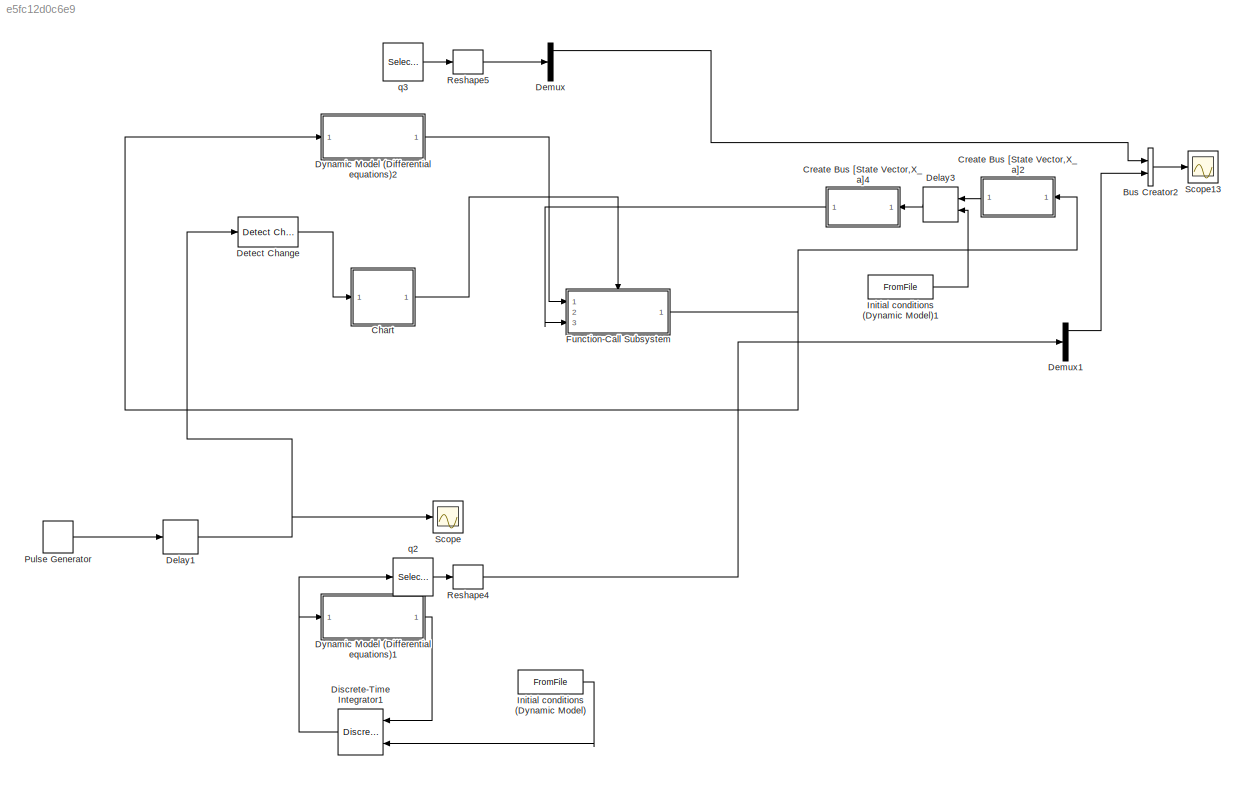
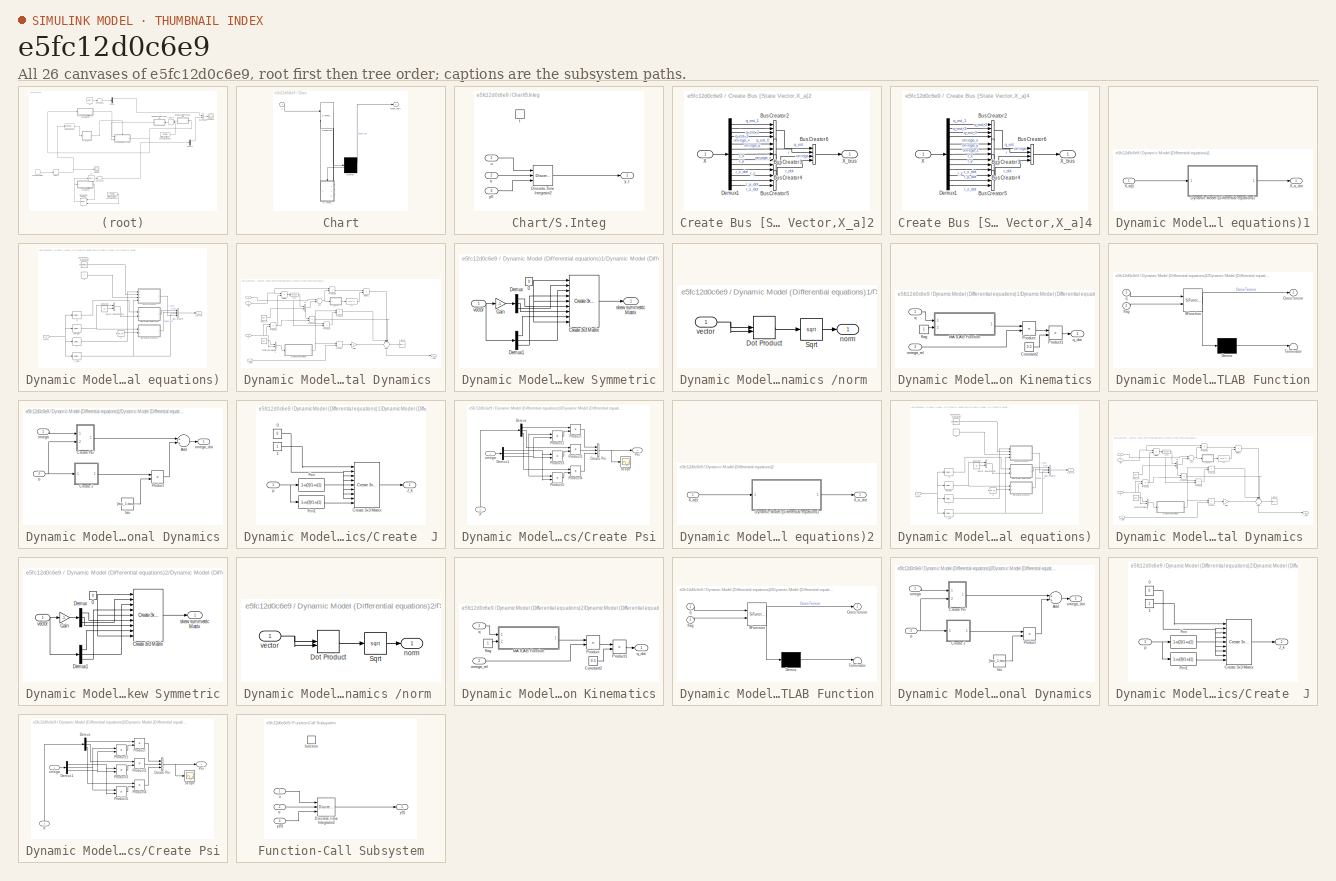
[diagram: thumbnail index - all 26 canvases of the model, root first then tree order]
MODEL slx_e5fc12d0c6e9
KIND model
WORKSPACE source: external: MATLAB File  (data not in archive)
BLOCK [BusCreator] Bus Creator2
  DisplayOption = bar
  Inputs = 2
  Ports = [2, 1]
BLOCK [SubSystem] Chart
  ErrorFcn = Stateflow.Translate.translate
  PermitHierarchicalResolution = ExplicitOnly
  Ports = [1, 1]
  RequestExecContextInheritance = off
  SFBlockType = Chart
  TreatAsAtomicUnit = on
BLOCK [Demux] Chart/ Demux 
  Outputs = 2
  Ports = [1, 2]
BLOCK [S-Function] Chart/ SFunction 
  EnableBusSupport = on
  FunctionName = sf_sfun
  PortCounts = [2 4]
  Ports = [2, 4]
  Tag = Stateflow S-Function test_State 3
BLOCK [SubSystem] Chart/S.Integ
  Ports = [3, 1, 0, 1]
  PreDeleteFcn = Stateflow.SLINSF.SimulinkMan.removePreDeleteFcn
  RequestExecContextInheritance = off
  UndoDeleteFcn = Stateflow.SLINSF.SimulinkMan.restorePreDeleteFcn
BLOCK [DiscreteIntegrator] Chart/S.Integ/Discrete-Time Integrator2
  ExternalReset = rising
  ICPrevOutput = DiscIntNeverNeededParam
  ICPrevScaledInput = DiscIntNeverNeededParam
  InitialConditionSource = external
  Ports = [3, 1, 0, 0, 1]
  SampleTime = -1
  ShowStatePort = on
BLOCK [TriggerPort] Chart/S.Integ/f
  CopyFcn = Stateflow.SLINSF.SimulinkMan.removeBlockPreDeleteFcn
  Ports = []
  PreDeleteFcn = Stateflow.SLINSF.SimulinkMan.unsafePredeleteFcn
  StatesWhenEnabling = held
  TriggerType = function-call
BLOCK [Inport] Chart/S.Integ/tr
  IconDisplay = Port number
  OutDataTypeStr = double
  Port = 2
  PortDimensions = 1
  SamplingMode = Sample based
  SignalType = real
  VarSizeSig = No
BLOCK [Inport] Chart/S.Integ/u
  IconDisplay = Port number
  OutDataTypeStr = double
  PortDimensions = 1
  SamplingMode = Sample based
  SignalType = real
  VarSizeSig = No
BLOCK [Inport] Chart/S.Integ/y0
  IconDisplay = Port number
  OutDataTypeStr = double
  Port = 3
  PortDimensions = 1
  SamplingMode = Sample based
  SignalType = real
  VarSizeSig = No
BLOCK [Outport] Chart/S.Integ/y_t
  IconDisplay = Port number
  OutDataTypeStr = double
  PortDimensions = 1
  SamplingMode = Sample based
  SignalType = real
  VarSizeSig = No
BLOCK [Outport] Chart/event_out()
  IconDisplay = Port number
BLOCK [Inport] Chart/u
  IconDisplay = Port number
BLOCK [SubSystem] Create Bus [State Vector,X_a]2
  Ports = [1, 1]
  RequestExecContextInheritance = off
BLOCK [BusCreator] Create Bus [State Vector,X_a]2/Bus Creator2
  DisplayOption = bar
  Ports = [4, 1]
BLOCK [BusCreator] Create Bus [State Vector,X_a]2/Bus Creator3
  DisplayOption = bar
  Inputs = 3
  Ports = [3, 1]
BLOCK [BusCreator] Create Bus [State Vector,X_a]2/Bus Creator4
  DisplayOption = bar
  Inputs = 3
  Ports = [3, 1]
BLOCK [BusCreator] Create Bus [State Vector,X_a]2/Bus Creator5
  DisplayOption = bar
  Inputs = 3
  Ports = [3, 1]
BLOCK [BusCreator] Create Bus [State Vector,X_a]2/Bus Creator6
  DisplayOption = bar
  Ports = [4, 1]
BLOCK [Demux] Create Bus [State Vector,X_a]2/Demux1
  DisplayOption = bar
  Outputs = 13
  Ports = [1, 13]
BLOCK [Inport] Create Bus [State Vector,X_a]2/X
  IconDisplay = Port number
BLOCK [Outport] Create Bus [State Vector,X_a]2/X_bus
  IconDisplay = Port number
BLOCK [SubSystem] Create Bus [State Vector,X_a]4
  Ports = [1, 1]
  RequestExecContextInheritance = off
BLOCK [BusCreator] Create Bus [State Vector,X_a]4/Bus Creator2
  DisplayOption = bar
  Ports = [4, 1]
BLOCK [BusCreator] Create Bus [State Vector,X_a]4/Bus Creator3
  DisplayOption = bar
  Inputs = 3
  Ports = [3, 1]
BLOCK [BusCreator] Create Bus [State Vector,X_a]4/Bus Creator4
  DisplayOption = bar
  Inputs = 3
  Ports = [3, 1]
BLOCK [BusCreator] Create Bus [State Vector,X_a]4/Bus Creator5
  DisplayOption = bar
  Inputs = 3
  Ports = [3, 1]
BLOCK [BusCreator] Create Bus [State Vector,X_a]4/Bus Creator6
  DisplayOption = bar
  Ports = [4, 1]
BLOCK [Demux] Create Bus [State Vector,X_a]4/Demux1
  DisplayOption = bar
  Outputs = 13
  Ports = [1, 13]
BLOCK [Inport] Create Bus [State Vector,X_a]4/X
  IconDisplay = Port number
BLOCK [Outport] Create Bus [State Vector,X_a]4/X_bus
  IconDisplay = Port number
BLOCK [Delay] Delay1
  DelayLength = 1
  InitialCondition = 0
  InputPortMap = u0
  Ports = [1, 1]
BLOCK [Delay] Delay3
  DelayLength = 1
  InitialCondition = 0
  InitialConditionSource = Input port
  InputPortMap = u0,p4
  Ports = [2, 1]
BLOCK [Demux] Demux
  DisplayOption = bar
  Ports = [1, 4]
BLOCK [Demux] Demux1
  DisplayOption = bar
  Ports = [1, 4]
BLOCK [Reference] Detect Change  REF=simulink/Logic and Bit
Operations/Detect
Change
  InputProcessing = Inherited
  OutDataTypeStr = boolean
  Ports = [1, 1]
  SourceBlock = simulink/Logic and Bit\nOperations/Detect\nChange
  SourceType = Detect Change
  vinit = 0
BLOCK [DiscreteIntegrator] Discrete-Time Integrator1
  ExternalReset = rising
  ICPrevOutput = DiscIntNeverNeededParam
  ICPrevScaledInput = DiscIntNeverNeededParam
  InitialConditionSetting = State (most efficient)
  InitialConditionSource = external
  Ports = [3, 1, 0, 0, 1]
  SampleTime = t_Kalman
  ShowStatePort = on
BLOCK [SubSystem] Dynamic Model (Differential equations)1
  Ports = [1, 1]
  RequestExecContextInheritance = off
BLOCK [SubSystem] Dynamic Model (Differential equations)1/Dynamic Model (Differential equations)
  Ports = [1, 1]
  RequestExecContextInheritance = off
BLOCK [BusCreator] Dynamic Model (Differential equations)1/Dynamic Model (Differential equations)/Bus Creator
  DisplayOption = bar
  Ports = [4, 1]
BLOCK [Constant] Dynamic Model (Differential equations)1/Dynamic Model (Differential equations)/Constant
  SampleTime = t_Kalman
  Value = [0]
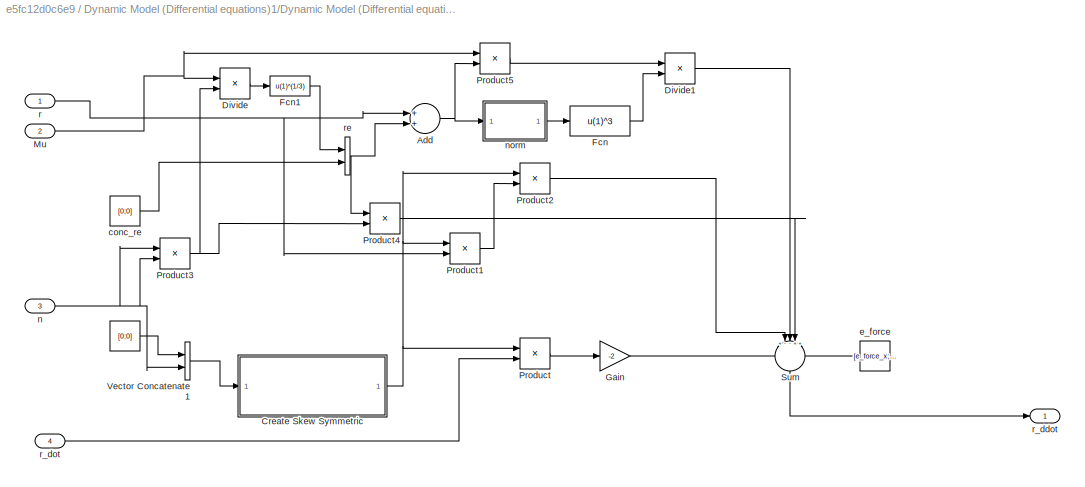
BLOCK [SubSystem] Dynamic Model (Differential equations)1/Dynamic Model (Differential equations)/Orbital Dynamics 
  Ports = [4, 1]
  RequestExecContextInheritance = off
BLOCK [Constant] Dynamic Model (Differential equations)1/Dynamic Model (Differential equations)/Orbital Dynamics / 
  SampleTime = t_Kalman
  Value = [0;0]
BLOCK [Sum] Dynamic Model (Differential equations)1/Dynamic Model (Differential equations)/Orbital Dynamics /Add
  InputSameDT = off
  OutDataTypeStr = Inherit: Inherit via internal rule
  Ports = [2, 1]
  SaturateOnIntegerOverflow = off
BLOCK [SubSystem] Dynamic Model (Differential equations)1/Dynamic Model (Differential equations)/Orbital Dynamics /Create Skew Symmetric
  Ports = [1, 1]
  RequestExecContextInheritance = off
BLOCK [Constant] Dynamic Model (Differential equations)1/Dynamic Model (Differential equations)/Orbital Dynamics /Create Skew Symmetric/0
  SampleTime = t_Kalman
  Value = 0
BLOCK [Reference] Dynamic Model (Differential equations)1/Dynamic Model (Differential equations)/Orbital Dynamics /Create Skew Symmetric/Create 3x3 Matrix  REF=aerolibutil/Create 3x3 Matrix
  Ports = [9, 1]
  SourceBlock = aerolibutil/Create 3x3 Matrix
  SourceType = Create 3x3 Matrix
BLOCK [Demux] Dynamic Model (Differential equations)1/Dynamic Model (Differential equations)/Orbital Dynamics /Create Skew Symmetric/Demux
  DisplayOption = bar
  Outputs = 3
  Ports = [1, 3]
BLOCK [Demux] Dynamic Model (Differential equations)1/Dynamic Model (Differential equations)/Orbital Dynamics /Create Skew Symmetric/Demux1
  DisplayOption = bar
  Outputs = 3
  Ports = [1, 3]
BLOCK [Gain] Dynamic Model (Differential equations)1/Dynamic Model (Differential equations)/Orbital Dynamics /Create Skew Symmetric/Gain
  Gain = -1
  OutDataTypeStr = Inherit: Inherit via internal rule
  ParamDataTypeStr = Inherit: Inherit via internal rule
  SaturateOnIntegerOverflow = off
BLOCK [Outport] Dynamic Model (Differential equations)1/Dynamic Model (Differential equations)/Orbital Dynamics /Create Skew Symmetric/skew symmetric Matrix
  IconDisplay = Port number
BLOCK [Inport] Dynamic Model (Differential equations)1/Dynamic Model (Differential equations)/Orbital Dynamics /Create Skew Symmetric/vector
  IconDisplay = Port number
BLOCK [Product] Dynamic Model (Differential equations)1/Dynamic Model (Differential equations)/Orbital Dynamics /Divide
  InputSameDT = off
  Inputs = */
  OutDataTypeStr = Inherit: Inherit via internal rule
  Ports = [2, 1]
  RndMeth = Floor
  SaturateOnIntegerOverflow = off
BLOCK [Product] Dynamic Model (Differential equations)1/Dynamic Model (Differential equations)/Orbital Dynamics /Divide1
  InputSameDT = off
  Inputs = */
  OutDataTypeStr = Inherit: Inherit via internal rule
  Ports = [2, 1]
  RndMeth = Floor
  SaturateOnIntegerOverflow = off
BLOCK [Fcn] Dynamic Model (Differential equations)1/Dynamic Model (Differential equations)/Orbital Dynamics /Fcn
  Expr = u(1)^3
BLOCK [Fcn] Dynamic Model (Differential equations)1/Dynamic Model (Differential equations)/Orbital Dynamics /Fcn1
  Expr = u(1)^(1/3)
BLOCK [Gain] Dynamic Model (Differential equations)1/Dynamic Model (Differential equations)/Orbital Dynamics /Gain
  Gain = -2
  OutDataTypeStr = Inherit: Inherit via internal rule
  ParamDataTypeStr = Inherit: Inherit via internal rule
  SaturateOnIntegerOverflow = off
BLOCK [Inport] Dynamic Model (Differential equations)1/Dynamic Model (Differential equations)/Orbital Dynamics /Mu
  IconDisplay = Port number
  Port = 2
BLOCK [Product] Dynamic Model (Differential equations)1/Dynamic Model (Differential equations)/Orbital Dynamics /Product
  InputSameDT = off
  Multiplication = Matrix(*)
  OutDataTypeStr = Inherit: Inherit via internal rule
  Ports = [2, 1]
  RndMeth = Floor
  SaturateOnIntegerOverflow = off
BLOCK [Product] Dynamic Model (Differential equations)1/Dynamic Model (Differential equations)/Orbital Dynamics /Product1
  InputSameDT = off
  Multiplication = Matrix(*)
  OutDataTypeStr = Inherit: Inherit via internal rule
  Ports = [2, 1]
  RndMeth = Floor
  SaturateOnIntegerOverflow = off
BLOCK [Product] Dynamic Model (Differential equations)1/Dynamic Model (Differential equations)/Orbital Dynamics /Product2
  InputSameDT = off
  Multiplication = Matrix(*)
  OutDataTypeStr = Inherit: Inherit via internal rule
  Ports = [2, 1]
  RndMeth = Floor
  SaturateOnIntegerOverflow = off
BLOCK [Product] Dynamic Model (Differential equations)1/Dynamic Model (Differential equations)/Orbital Dynamics /Product3
  InputSameDT = off
  OutDataTypeStr = Inherit: Inherit via internal rule
  Ports = [2, 1]
  RndMeth = Floor
  SaturateOnIntegerOverflow = off
BLOCK [Product] Dynamic Model (Differential equations)1/Dynamic Model (Differential equations)/Orbital Dynamics /Product4
  InputSameDT = off
  OutDataTypeStr = Inherit: Inherit via internal rule
  Ports = [2, 1]
  RndMeth = Floor
  SaturateOnIntegerOverflow = off
BLOCK [Product] Dynamic Model (Differential equations)1/Dynamic Model (Differential equations)/Orbital Dynamics /Product5
  InputSameDT = off
  OutDataTypeStr = Inherit: Inherit via internal rule
  Ports = [2, 1]
  RndMeth = Floor
  SaturateOnIntegerOverflow = off
BLOCK [Sum] Dynamic Model (Differential equations)1/Dynamic Model (Differential equations)/Orbital Dynamics /Sum
  IconShape = round
  InputSameDT = off
  Inputs = +--++
  OutDataTypeStr = Inherit: Inherit via internal rule
  Ports = [5, 1]
  SaturateOnIntegerOverflow = off
BLOCK [Concatenate] Dynamic Model (Differential equations)1/Dynamic Model (Differential equations)/Orbital Dynamics /Vector Concatenate1
  Ports = [2, 1]
BLOCK [Constant] Dynamic Model (Differential equations)1/Dynamic Model (Differential equations)/Orbital Dynamics /conc_re 
  SampleTime = t_Kalman
  Value = [0;0]
BLOCK [Constant] Dynamic Model (Differential equations)1/Dynamic Model (Differential equations)/Orbital Dynamics /e_force 
  SampleTime = t_Kalman
  Value = [e_force_x;e_force_y;e_force_z]
BLOCK [Inport] Dynamic Model (Differential equations)1/Dynamic Model (Differential equations)/Orbital Dynamics /n
  IconDisplay = Port number
  Port = 3
BLOCK [SubSystem] Dynamic Model (Differential equations)1/Dynamic Model (Differential equations)/Orbital Dynamics /norm 
  Ports = [1, 1]
  RequestExecContextInheritance = off
BLOCK [DotProduct] Dynamic Model (Differential equations)1/Dynamic Model (Differential equations)/Orbital Dynamics /norm /Dot Product
  OutDataTypeStr = Inherit: Inherit via internal rule
BLOCK [Sqrt] Dynamic Model (Differential equations)1/Dynamic Model (Differential equations)/Orbital Dynamics /norm /Sqrt
BLOCK [Outport] Dynamic Model (Differential equations)1/Dynamic Model (Differential equations)/Orbital Dynamics /norm /norm 
  IconDisplay = Port number
BLOCK [Inport] Dynamic Model (Differential equations)1/Dynamic Model (Differential equations)/Orbital Dynamics /norm /vector
  IconDisplay = Port number
BLOCK [Inport] Dynamic Model (Differential equations)1/Dynamic Model (Differential equations)/Orbital Dynamics /r
  IconDisplay = Port number
BLOCK [Outport] Dynamic Model (Differential equations)1/Dynamic Model (Differential equations)/Orbital Dynamics /r_ddot 
  IconDisplay = Port number
BLOCK [Inport] Dynamic Model (Differential equations)1/Dynamic Model (Differential equations)/Orbital Dynamics /r_dot 
  IconDisplay = Port number
  Port = 4
BLOCK [Concatenate] Dynamic Model (Differential equations)1/Dynamic Model (Differential equations)/Orbital Dynamics /re
  Ports = [2, 1]
BLOCK [SubSystem] Dynamic Model (Differential equations)1/Dynamic Model (Differential equations)/Quaternion Kinematics
  Ports = [2, 1]
  RequestExecContextInheritance = off
BLOCK [Constant] Dynamic Model (Differential equations)1/Dynamic Model (Differential equations)/Quaternion Kinematics/Constant2
  SampleTime = t_Kalman
  Value = 0.5
BLOCK [SubSystem] Dynamic Model (Differential equations)1/Dynamic Model (Differential equations)/Quaternion Kinematics/MATLAB Function
  ErrorFcn = Stateflow.Translate.translate
  PermitHierarchicalResolution = ExplicitOnly
  Ports = [2, 1]
  RequestExecContextInheritance = off
  SFBlockType = MATLAB Function
  TreatAsAtomicUnit = on
BLOCK [Demux] Dynamic Model (Differential equations)1/Dynamic Model (Differential equations)/Quaternion Kinematics/MATLAB Function/ Demux 
  Outputs = 1
  Ports = [1, 1]
BLOCK [S-Function] Dynamic Model (Differential equations)1/Dynamic Model (Differential equations)/Quaternion Kinematics/MATLAB Function/ SFunction 
  EnableBusSupport = on
  FunctionName = sf_sfun
  PortCounts = [2 2]
  Ports = [2, 2]
  Tag = Stateflow S-Function test_State 17
BLOCK [Terminator] Dynamic Model (Differential equations)1/Dynamic Model (Differential equations)/Quaternion Kinematics/MATLAB Function/ Terminator 
BLOCK [Outport] Dynamic Model (Differential equations)1/Dynamic Model (Differential equations)/Quaternion Kinematics/MATLAB Function/CrossTensor
  IconDisplay = Port number
BLOCK [Inport] Dynamic Model (Differential equations)1/Dynamic Model (Differential equations)/Quaternion Kinematics/MATLAB Function/flag
  IconDisplay = Port number
  Port = 2
BLOCK [Inport] Dynamic Model (Differential equations)1/Dynamic Model (Differential equations)/Quaternion Kinematics/MATLAB Function/q
  IconDisplay = Port number
BLOCK [Product] Dynamic Model (Differential equations)1/Dynamic Model (Differential equations)/Quaternion Kinematics/Product
  InputSameDT = off
  Multiplication = Matrix(*)
  OutDataTypeStr = Inherit: Inherit via internal rule
  Ports = [2, 1]
  RndMeth = Floor
  SaturateOnIntegerOverflow = off
BLOCK [Product] Dynamic Model (Differential equations)1/Dynamic Model (Differential equations)/Quaternion Kinematics/Product1
  InputSameDT = off
  OutDataTypeStr = Inherit: Inherit via internal rule
  Ports = [2, 1]
  RndMeth = Floor
  SaturateOnIntegerOverflow = off
BLOCK [Constant] Dynamic Model (Differential equations)1/Dynamic Model (Differential equations)/Quaternion Kinematics/flag
  SampleTime = t_Kalman
BLOCK [Inport] Dynamic Model (Differential equations)1/Dynamic Model (Differential equations)/Quaternion Kinematics/omega_rel
  IconDisplay = Port number
  Port = 2
BLOCK [Inport] Dynamic Model (Differential equations)1/Dynamic Model (Differential equations)/Quaternion Kinematics/q
  IconDisplay = Port number
BLOCK [Outport] Dynamic Model (Differential equations)1/Dynamic Model (Differential equations)/Quaternion Kinematics/q_dot
  IconDisplay = Port number
BLOCK [SubSystem] Dynamic Model (Differential equations)1/Dynamic Model (Differential equations)/Rotational Dynamics
  Ports = [2, 1]
  RequestExecContextInheritance = off
BLOCK [Sum] Dynamic Model (Differential equations)1/Dynamic Model (Differential equations)/Rotational Dynamics/Add
  InputSameDT = off
  OutDataTypeStr = Inherit: Inherit via internal rule
  Ports = [2, 1]
  SaturateOnIntegerOverflow = off
BLOCK [SubSystem] Dynamic Model (Differential equations)1/Dynamic Model (Differential equations)/Rotational Dynamics/Create  J
  Ports = [1, 1]
  RequestExecContextInheritance = off
BLOCK [Constant] Dynamic Model (Differential equations)1/Dynamic Model (Differential equations)/Rotational Dynamics/Create  J/0
  SampleTime = t_Kalman
  Value = 0
BLOCK [Constant] Dynamic Model (Differential equations)1/Dynamic Model (Differential equations)/Rotational Dynamics/Create  J/1
  SampleTime = t_Kalman
BLOCK [Reference] Dynamic Model (Differential equations)1/Dynamic Model (Differential equations)/Rotational Dynamics/Create  J/Create 3x3 Matrix  REF=aerolibutil/Create 3x3 Matrix
  Ports = [9, 1]
  SourceBlock = aerolibutil/Create 3x3 Matrix
  SourceType = Create 3x3 Matrix
BLOCK [Fcn] Dynamic Model (Differential equations)1/Dynamic Model (Differential equations)/Rotational Dynamics/Create  J/Fcn
  Expr = 1-u(2)/1+u(1)
BLOCK [Fcn] Dynamic Model (Differential equations)1/Dynamic Model (Differential equations)/Rotational Dynamics/Create  J/Fcn1
  Expr = 1+u(3)/1-u(1)
BLOCK [Outport] Dynamic Model (Differential equations)1/Dynamic Model (Differential equations)/Rotational Dynamics/Create  J/J_k 
  IconDisplay = Port number
BLOCK [Inport] Dynamic Model (Differential equations)1/Dynamic Model (Differential equations)/Rotational Dynamics/Create  J/p
  IconDisplay = Port number
BLOCK [SubSystem] Dynamic Model (Differential equations)1/Dynamic Model (Differential equations)/Rotational Dynamics/Create Psi
  Ports = [2, 1]
  RequestExecContextInheritance = off
BLOCK [Concatenate] Dynamic Model (Differential equations)1/Dynamic Model (Differential equations)/Rotational Dynamics/Create Psi/Create Psi
  NumInputs = 3
  Ports = [3, 1]
BLOCK [Demux] Dynamic Model (Differential equations)1/Dynamic Model (Differential equations)/Rotational Dynamics/Create Psi/Demux
  DisplayOption = bar
  Outputs = 3
  Ports = [1, 3]
BLOCK [Demux] Dynamic Model (Differential equations)1/Dynamic Model (Differential equations)/Rotational Dynamics/Create Psi/Demux1
  DisplayOption = bar
  Outputs = 3
  Ports = [1, 3]
BLOCK [Product] Dynamic Model (Differential equations)1/Dynamic Model (Differential equations)/Rotational Dynamics/Create Psi/Product
  InputSameDT = off
  OutDataTypeStr = Inherit: Inherit via internal rule
  Ports = [2, 1]
  RndMeth = Floor
  SaturateOnIntegerOverflow = off
BLOCK [Product] Dynamic Model (Differential equations)1/Dynamic Model (Differential equations)/Rotational Dynamics/Create Psi/Product1
  InputSameDT = off
  OutDataTypeStr = Inherit: Inherit via internal rule
  Ports = [2, 1]
  RndMeth = Floor
  SaturateOnIntegerOverflow = off
BLOCK [Product] Dynamic Model (Differential equations)1/Dynamic Model (Differential equations)/Rotational Dynamics/Create Psi/Product2
  InputSameDT = off
  OutDataTypeStr = Inherit: Inherit via internal rule
  Ports = [2, 1]
  RndMeth = Floor
  SaturateOnIntegerOverflow = off
BLOCK [Product] Dynamic Model (Differential equations)1/Dynamic Model (Differential equations)/Rotational Dynamics/Create Psi/Product3
  InputSameDT = off
  OutDataTypeStr = Inherit: Inherit via internal rule
  Ports = [2, 1]
  RndMeth = Floor
  SaturateOnIntegerOverflow = off
BLOCK [Product] Dynamic Model (Differential equations)1/Dynamic Model (Differential equations)/Rotational Dynamics/Create Psi/Product4
  InputSameDT = off
  OutDataTypeStr = Inherit: Inherit via internal rule
  Ports = [2, 1]
  RndMeth = Floor
  SaturateOnIntegerOverflow = off
BLOCK [Product] Dynamic Model (Differential equations)1/Dynamic Model (Differential equations)/Rotational Dynamics/Create Psi/Product5
  InputSameDT = off
  OutDataTypeStr = Inherit: Inherit via internal rule
  Ports = [2, 1]
  RndMeth = Floor
  SaturateOnIntegerOverflow = off
BLOCK [Outport] Dynamic Model (Differential equations)1/Dynamic Model (Differential equations)/Rotational Dynamics/Create Psi/Psi
  IconDisplay = Port number
BLOCK [Scope] Dynamic Model (Differential equations)1/Dynamic Model (Differential equations)/Rotational Dynamics/Create Psi/Scope
  Floating = off
  NumInputPorts = 1
  Ports = [1]
  SaveName = ScopeData20
  ShowLegends = off
BLOCK [Inport] Dynamic Model (Differential equations)1/Dynamic Model (Differential equations)/Rotational Dynamics/Create Psi/omega 
  IconDisplay = Port number
BLOCK [Inport] Dynamic Model (Differential equations)1/Dynamic Model (Differential equations)/Rotational Dynamics/Create Psi/p
  IconDisplay = Port number
  Port = 2
BLOCK [Product] Dynamic Model (Differential equations)1/Dynamic Model (Differential equations)/Rotational Dynamics/Product
  InputSameDT = off
  Multiplication = Matrix(*)
  OutDataTypeStr = Inherit: Inherit via internal rule
  Ports = [2, 1]
  RndMeth = Floor
  SaturateOnIntegerOverflow = off
BLOCK [Inport] Dynamic Model (Differential equations)1/Dynamic Model (Differential equations)/Rotational Dynamics/omega
  IconDisplay = Port number
BLOCK [Outport] Dynamic Model (Differential equations)1/Dynamic Model (Differential equations)/Rotational Dynamics/omega_dot
  IconDisplay = Port number
BLOCK [Inport] Dynamic Model (Differential equations)1/Dynamic Model (Differential equations)/Rotational Dynamics/p
  IconDisplay = Port number
  Port = 2
BLOCK [Constant] Dynamic Model (Differential equations)1/Dynamic Model (Differential equations)/Rotational Dynamics/tau
  SampleTime = t_Kalman
  Value = [tau_1;tau_2;tau_3]
BLOCK [Concatenate] Dynamic Model (Differential equations)1/Dynamic Model (Differential equations)/Vector Concatenate
  Ports = [2, 1]
BLOCK [Inport] Dynamic Model (Differential equations)1/Dynamic Model (Differential equations)/X_a(t)
  IconDisplay = Port number
BLOCK [Outport] Dynamic Model (Differential equations)1/Dynamic Model (Differential equations)/X_a(t+1)
  IconDisplay = Port number
BLOCK [Constant] Dynamic Model (Differential equations)1/Dynamic Model (Differential equations)/n
  SampleTime = t_Kalman
  Value = n
BLOCK [Selector] Dynamic Model (Differential equations)1/Dynamic Model (Differential equations)/omega
  IndexOptions = Index vector (dialog),Index vector (dialog)
  Indices = [5 6 7],1
  InputPortWidth = 3
  NumberOfDimensions = 2
  OutputSizes = 1,1
  Ports = [1, 1]
BLOCK [Constant] Dynamic Model (Differential equations)1/Dynamic Model (Differential equations)/p
  SampleTime = t_Kalman
  Value = [p_x;p_y;p_z]
BLOCK [Constant] Dynamic Model (Differential equations)1/Dynamic Model (Differential equations)/parameter_gravitation
  SampleTime = t_Kalman
  Value = parameter_gravitation
BLOCK [Selector] Dynamic Model (Differential equations)1/Dynamic Model (Differential equations)/q
  IndexOptions = Index vector (dialog),Index vector (dialog)
  Indices = [1 2 3 4],1
  InputPortWidth = 3
  NumberOfDimensions = 2
  OutputSizes = 1,1
  Ports = [1, 1]
BLOCK [Selector] Dynamic Model (Differential equations)1/Dynamic Model (Differential equations)/r
  IndexOptions = Index vector (dialog),Index vector (dialog)
  Indices = [8 9 10],1
  InputPortWidth = 3
  NumberOfDimensions = 2
  OutputSizes = 1,1
  Ports = [1, 1]
BLOCK [Selector] Dynamic Model (Differential equations)1/Dynamic Model (Differential equations)/r_dot
  IndexOptions = Index vector (dialog),Index vector (dialog)
  Indices = [11 12 13],1
  InputPortWidth = 3
  NumberOfDimensions = 2
  OutputSizes = 1,1
  Ports = [1, 1]
BLOCK [Inport] Dynamic Model (Differential equations)1/X_a(t)
  IconDisplay = Port number
BLOCK [Outport] Dynamic Model (Differential equations)1/X_a_dot
  IconDisplay = Port number
BLOCK [SubSystem] Dynamic Model (Differential equations)2
  Ports = [1, 1]
  RequestExecContextInheritance = off
BLOCK [SubSystem] Dynamic Model (Differential equations)2/Dynamic Model (Differential equations)
  Ports = [1, 1]
  RequestExecContextInheritance = off
BLOCK [BusCreator] Dynamic Model (Differential equations)2/Dynamic Model (Differential equations)/Bus Creator
  DisplayOption = bar
  Ports = [4, 1]
BLOCK [Constant] Dynamic Model (Differential equations)2/Dynamic Model (Differential equations)/Constant
  SampleTime = t_Kalman
  Value = [0]
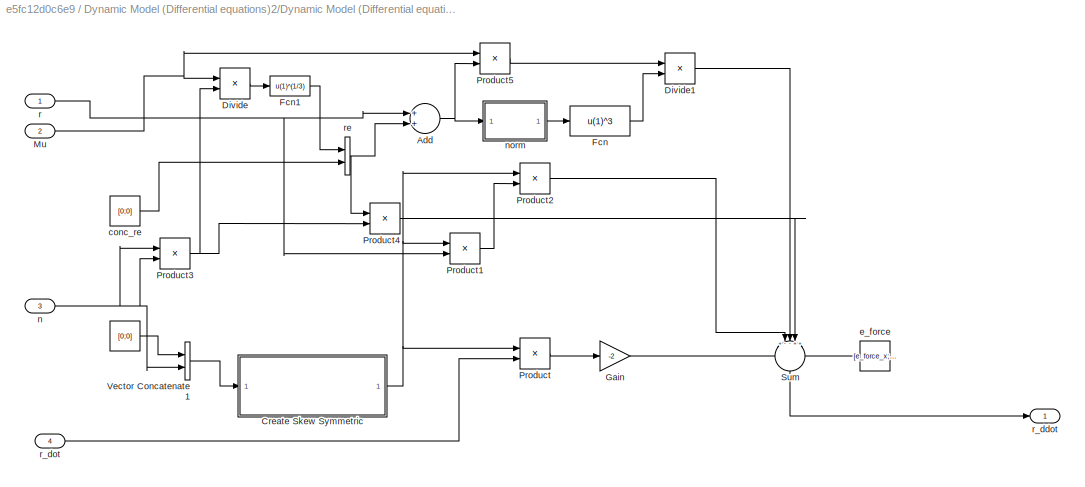
BLOCK [SubSystem] Dynamic Model (Differential equations)2/Dynamic Model (Differential equations)/Orbital Dynamics 
  Ports = [4, 1]
  RequestExecContextInheritance = off
BLOCK [Constant] Dynamic Model (Differential equations)2/Dynamic Model (Differential equations)/Orbital Dynamics / 
  SampleTime = t_Kalman
  Value = [0;0]
BLOCK [Sum] Dynamic Model (Differential equations)2/Dynamic Model (Differential equations)/Orbital Dynamics /Add
  InputSameDT = off
  OutDataTypeStr = Inherit: Inherit via internal rule
  Ports = [2, 1]
  SaturateOnIntegerOverflow = off
BLOCK [SubSystem] Dynamic Model (Differential equations)2/Dynamic Model (Differential equations)/Orbital Dynamics /Create Skew Symmetric
  Ports = [1, 1]
  RequestExecContextInheritance = off
BLOCK [Constant] Dynamic Model (Differential equations)2/Dynamic Model (Differential equations)/Orbital Dynamics /Create Skew Symmetric/0
  SampleTime = t_Kalman
  Value = 0
BLOCK [Reference] Dynamic Model (Differential equations)2/Dynamic Model (Differential equations)/Orbital Dynamics /Create Skew Symmetric/Create 3x3 Matrix  REF=aerolibutil/Create 3x3 Matrix
  Ports = [9, 1]
  SourceBlock = aerolibutil/Create 3x3 Matrix
  SourceType = Create 3x3 Matrix
BLOCK [Demux] Dynamic Model (Differential equations)2/Dynamic Model (Differential equations)/Orbital Dynamics /Create Skew Symmetric/Demux
  DisplayOption = bar
  Outputs = 3
  Ports = [1, 3]
BLOCK [Demux] Dynamic Model (Differential equations)2/Dynamic Model (Differential equations)/Orbital Dynamics /Create Skew Symmetric/Demux1
  DisplayOption = bar
  Outputs = 3
  Ports = [1, 3]
BLOCK [Gain] Dynamic Model (Differential equations)2/Dynamic Model (Differential equations)/Orbital Dynamics /Create Skew Symmetric/Gain
  Gain = -1
  OutDataTypeStr = Inherit: Inherit via internal rule
  ParamDataTypeStr = Inherit: Inherit via internal rule
  SaturateOnIntegerOverflow = off
BLOCK [Outport] Dynamic Model (Differential equations)2/Dynamic Model (Differential equations)/Orbital Dynamics /Create Skew Symmetric/skew symmetric Matrix
  IconDisplay = Port number
BLOCK [Inport] Dynamic Model (Differential equations)2/Dynamic Model (Differential equations)/Orbital Dynamics /Create Skew Symmetric/vector
  IconDisplay = Port number
BLOCK [Product] Dynamic Model (Differential equations)2/Dynamic Model (Differential equations)/Orbital Dynamics /Divide
  InputSameDT = off
  Inputs = */
  OutDataTypeStr = Inherit: Inherit via internal rule
  Ports = [2, 1]
  RndMeth = Floor
  SaturateOnIntegerOverflow = off
BLOCK [Product] Dynamic Model (Differential equations)2/Dynamic Model (Differential equations)/Orbital Dynamics /Divide1
  InputSameDT = off
  Inputs = */
  OutDataTypeStr = Inherit: Inherit via internal rule
  Ports = [2, 1]
  RndMeth = Floor
  SaturateOnIntegerOverflow = off
BLOCK [Fcn] Dynamic Model (Differential equations)2/Dynamic Model (Differential equations)/Orbital Dynamics /Fcn
  Expr = u(1)^3
BLOCK [Fcn] Dynamic Model (Differential equations)2/Dynamic Model (Differential equations)/Orbital Dynamics /Fcn1
  Expr = u(1)^(1/3)
BLOCK [Gain] Dynamic Model (Differential equations)2/Dynamic Model (Differential equations)/Orbital Dynamics /Gain
  Gain = -2
  OutDataTypeStr = Inherit: Inherit via internal rule
  ParamDataTypeStr = Inherit: Inherit via internal rule
  SaturateOnIntegerOverflow = off
BLOCK [Inport] Dynamic Model (Differential equations)2/Dynamic Model (Differential equations)/Orbital Dynamics /Mu
  IconDisplay = Port number
  Port = 2
BLOCK [Product] Dynamic Model (Differential equations)2/Dynamic Model (Differential equations)/Orbital Dynamics /Product
  InputSameDT = off
  Multiplication = Matrix(*)
  OutDataTypeStr = Inherit: Inherit via internal rule
  Ports = [2, 1]
  RndMeth = Floor
  SaturateOnIntegerOverflow = off
BLOCK [Product] Dynamic Model (Differential equations)2/Dynamic Model (Differential equations)/Orbital Dynamics /Product1
  InputSameDT = off
  Multiplication = Matrix(*)
  OutDataTypeStr = Inherit: Inherit via internal rule
  Ports = [2, 1]
  RndMeth = Floor
  SaturateOnIntegerOverflow = off
BLOCK [Product] Dynamic Model (Differential equations)2/Dynamic Model (Differential equations)/Orbital Dynamics /Product2
  InputSameDT = off
  Multiplication = Matrix(*)
  OutDataTypeStr = Inherit: Inherit via internal rule
  Ports = [2, 1]
  RndMeth = Floor
  SaturateOnIntegerOverflow = off
BLOCK [Product] Dynamic Model (Differential equations)2/Dynamic Model (Differential equations)/Orbital Dynamics /Product3
  InputSameDT = off
  OutDataTypeStr = Inherit: Inherit via internal rule
  Ports = [2, 1]
  RndMeth = Floor
  SaturateOnIntegerOverflow = off
BLOCK [Product] Dynamic Model (Differential equations)2/Dynamic Model (Differential equations)/Orbital Dynamics /Product4
  InputSameDT = off
  OutDataTypeStr = Inherit: Inherit via internal rule
  Ports = [2, 1]
  RndMeth = Floor
  SaturateOnIntegerOverflow = off
BLOCK [Product] Dynamic Model (Differential equations)2/Dynamic Model (Differential equations)/Orbital Dynamics /Product5
  InputSameDT = off
  OutDataTypeStr = Inherit: Inherit via internal rule
  Ports = [2, 1]
  RndMeth = Floor
  SaturateOnIntegerOverflow = off
BLOCK [Sum] Dynamic Model (Differential equations)2/Dynamic Model (Differential equations)/Orbital Dynamics /Sum
  IconShape = round
  InputSameDT = off
  Inputs = +--++
  OutDataTypeStr = Inherit: Inherit via internal rule
  Ports = [5, 1]
  SaturateOnIntegerOverflow = off
BLOCK [Concatenate] Dynamic Model (Differential equations)2/Dynamic Model (Differential equations)/Orbital Dynamics /Vector Concatenate1
  Ports = [2, 1]
BLOCK [Constant] Dynamic Model (Differential equations)2/Dynamic Model (Differential equations)/Orbital Dynamics /conc_re 
  SampleTime = t_Kalman
  Value = [0;0]
BLOCK [Constant] Dynamic Model (Differential equations)2/Dynamic Model (Differential equations)/Orbital Dynamics /e_force 
  SampleTime = t_Kalman
  Value = [e_force_x;e_force_y;e_force_z]
BLOCK [Inport] Dynamic Model (Differential equations)2/Dynamic Model (Differential equations)/Orbital Dynamics /n
  IconDisplay = Port number
  Port = 3
BLOCK [SubSystem] Dynamic Model (Differential equations)2/Dynamic Model (Differential equations)/Orbital Dynamics /norm 
  Ports = [1, 1]
  RequestExecContextInheritance = off
BLOCK [DotProduct] Dynamic Model (Differential equations)2/Dynamic Model (Differential equations)/Orbital Dynamics /norm /Dot Product
  OutDataTypeStr = Inherit: Inherit via internal rule
BLOCK [Sqrt] Dynamic Model (Differential equations)2/Dynamic Model (Differential equations)/Orbital Dynamics /norm /Sqrt
BLOCK [Outport] Dynamic Model (Differential equations)2/Dynamic Model (Differential equations)/Orbital Dynamics /norm /norm 
  IconDisplay = Port number
BLOCK [Inport] Dynamic Model (Differential equations)2/Dynamic Model (Differential equations)/Orbital Dynamics /norm /vector
  IconDisplay = Port number
BLOCK [Inport] Dynamic Model (Differential equations)2/Dynamic Model (Differential equations)/Orbital Dynamics /r
  IconDisplay = Port number
BLOCK [Outport] Dynamic Model (Differential equations)2/Dynamic Model (Differential equations)/Orbital Dynamics /r_ddot 
  IconDisplay = Port number
BLOCK [Inport] Dynamic Model (Differential equations)2/Dynamic Model (Differential equations)/Orbital Dynamics /r_dot 
  IconDisplay = Port number
  Port = 4
BLOCK [Concatenate] Dynamic Model (Differential equations)2/Dynamic Model (Differential equations)/Orbital Dynamics /re
  Ports = [2, 1]
BLOCK [SubSystem] Dynamic Model (Differential equations)2/Dynamic Model (Differential equations)/Quaternion Kinematics
  Ports = [2, 1]
  RequestExecContextInheritance = off
BLOCK [Constant] Dynamic Model (Differential equations)2/Dynamic Model (Differential equations)/Quaternion Kinematics/Constant2
  SampleTime = t_Kalman
  Value = 0.5
BLOCK [SubSystem] Dynamic Model (Differential equations)2/Dynamic Model (Differential equations)/Quaternion Kinematics/MATLAB Function
  ErrorFcn = Stateflow.Translate.translate
  PermitHierarchicalResolution = ExplicitOnly
  Ports = [2, 1]
  RequestExecContextInheritance = off
  SFBlockType = MATLAB Function
  TreatAsAtomicUnit = on
BLOCK [Demux] Dynamic Model (Differential equations)2/Dynamic Model (Differential equations)/Quaternion Kinematics/MATLAB Function/ Demux 
  Outputs = 1
  Ports = [1, 1]
BLOCK [S-Function] Dynamic Model (Differential equations)2/Dynamic Model (Differential equations)/Quaternion Kinematics/MATLAB Function/ SFunction 
  EnableBusSupport = on
  FunctionName = sf_sfun
  PortCounts = [2 2]
  Ports = [2, 2]
  Tag = Stateflow S-Function test_State 18
BLOCK [Terminator] Dynamic Model (Differential equations)2/Dynamic Model (Differential equations)/Quaternion Kinematics/MATLAB Function/ Terminator 
BLOCK [Outport] Dynamic Model (Differential equations)2/Dynamic Model (Differential equations)/Quaternion Kinematics/MATLAB Function/CrossTensor
  IconDisplay = Port number
BLOCK [Inport] Dynamic Model (Differential equations)2/Dynamic Model (Differential equations)/Quaternion Kinematics/MATLAB Function/flag
  IconDisplay = Port number
  Port = 2
BLOCK [Inport] Dynamic Model (Differential equations)2/Dynamic Model (Differential equations)/Quaternion Kinematics/MATLAB Function/q
  IconDisplay = Port number
BLOCK [Product] Dynamic Model (Differential equations)2/Dynamic Model (Differential equations)/Quaternion Kinematics/Product
  InputSameDT = off
  Multiplication = Matrix(*)
  OutDataTypeStr = Inherit: Inherit via internal rule
  Ports = [2, 1]
  RndMeth = Floor
  SaturateOnIntegerOverflow = off
BLOCK [Product] Dynamic Model (Differential equations)2/Dynamic Model (Differential equations)/Quaternion Kinematics/Product1
  InputSameDT = off
  OutDataTypeStr = Inherit: Inherit via internal rule
  Ports = [2, 1]
  RndMeth = Floor
  SaturateOnIntegerOverflow = off
BLOCK [Constant] Dynamic Model (Differential equations)2/Dynamic Model (Differential equations)/Quaternion Kinematics/flag
  SampleTime = t_Kalman
BLOCK [Inport] Dynamic Model (Differential equations)2/Dynamic Model (Differential equations)/Quaternion Kinematics/omega_rel
  IconDisplay = Port number
  Port = 2
BLOCK [Inport] Dynamic Model (Differential equations)2/Dynamic Model (Differential equations)/Quaternion Kinematics/q
  IconDisplay = Port number
BLOCK [Outport] Dynamic Model (Differential equations)2/Dynamic Model (Differential equations)/Quaternion Kinematics/q_dot
  IconDisplay = Port number
BLOCK [SubSystem] Dynamic Model (Differential equations)2/Dynamic Model (Differential equations)/Rotational Dynamics
  Ports = [2, 1]
  RequestExecContextInheritance = off
BLOCK [Sum] Dynamic Model (Differential equations)2/Dynamic Model (Differential equations)/Rotational Dynamics/Add
  InputSameDT = off
  OutDataTypeStr = Inherit: Inherit via internal rule
  Ports = [2, 1]
  SaturateOnIntegerOverflow = off
BLOCK [SubSystem] Dynamic Model (Differential equations)2/Dynamic Model (Differential equations)/Rotational Dynamics/Create  J
  Ports = [1, 1]
  RequestExecContextInheritance = off
BLOCK [Constant] Dynamic Model (Differential equations)2/Dynamic Model (Differential equations)/Rotational Dynamics/Create  J/0
  SampleTime = t_Kalman
  Value = 0
BLOCK [Constant] Dynamic Model (Differential equations)2/Dynamic Model (Differential equations)/Rotational Dynamics/Create  J/1
  SampleTime = t_Kalman
BLOCK [Reference] Dynamic Model (Differential equations)2/Dynamic Model (Differential equations)/Rotational Dynamics/Create  J/Create 3x3 Matrix  REF=aerolibutil/Create 3x3 Matrix
  Ports = [9, 1]
  SourceBlock = aerolibutil/Create 3x3 Matrix
  SourceType = Create 3x3 Matrix
BLOCK [Fcn] Dynamic Model (Differential equations)2/Dynamic Model (Differential equations)/Rotational Dynamics/Create  J/Fcn
  Expr = 1-u(2)/1+u(1)
BLOCK [Fcn] Dynamic Model (Differential equations)2/Dynamic Model (Differential equations)/Rotational Dynamics/Create  J/Fcn1
  Expr = 1+u(3)/1-u(1)
BLOCK [Outport] Dynamic Model (Differential equations)2/Dynamic Model (Differential equations)/Rotational Dynamics/Create  J/J_k 
  IconDisplay = Port number
BLOCK [Inport] Dynamic Model (Differential equations)2/Dynamic Model (Differential equations)/Rotational Dynamics/Create  J/p
  IconDisplay = Port number
BLOCK [SubSystem] Dynamic Model (Differential equations)2/Dynamic Model (Differential equations)/Rotational Dynamics/Create Psi
  Ports = [2, 1]
  RequestExecContextInheritance = off
BLOCK [Concatenate] Dynamic Model (Differential equations)2/Dynamic Model (Differential equations)/Rotational Dynamics/Create Psi/Create Psi
  NumInputs = 3
  Ports = [3, 1]
BLOCK [Demux] Dynamic Model (Differential equations)2/Dynamic Model (Differential equations)/Rotational Dynamics/Create Psi/Demux
  DisplayOption = bar
  Outputs = 3
  Ports = [1, 3]
BLOCK [Demux] Dynamic Model (Differential equations)2/Dynamic Model (Differential equations)/Rotational Dynamics/Create Psi/Demux1
  DisplayOption = bar
  Outputs = 3
  Ports = [1, 3]
BLOCK [Product] Dynamic Model (Differential equations)2/Dynamic Model (Differential equations)/Rotational Dynamics/Create Psi/Product
  InputSameDT = off
  OutDataTypeStr = Inherit: Inherit via internal rule
  Ports = [2, 1]
  RndMeth = Floor
  SaturateOnIntegerOverflow = off
BLOCK [Product] Dynamic Model (Differential equations)2/Dynamic Model (Differential equations)/Rotational Dynamics/Create Psi/Product1
  InputSameDT = off
  OutDataTypeStr = Inherit: Inherit via internal rule
  Ports = [2, 1]
  RndMeth = Floor
  SaturateOnIntegerOverflow = off
BLOCK [Product] Dynamic Model (Differential equations)2/Dynamic Model (Differential equations)/Rotational Dynamics/Create Psi/Product2
  InputSameDT = off
  OutDataTypeStr = Inherit: Inherit via internal rule
  Ports = [2, 1]
  RndMeth = Floor
  SaturateOnIntegerOverflow = off
BLOCK [Product] Dynamic Model (Differential equations)2/Dynamic Model (Differential equations)/Rotational Dynamics/Create Psi/Product3
  InputSameDT = off
  OutDataTypeStr = Inherit: Inherit via internal rule
  Ports = [2, 1]
  RndMeth = Floor
  SaturateOnIntegerOverflow = off
BLOCK [Product] Dynamic Model (Differential equations)2/Dynamic Model (Differential equations)/Rotational Dynamics/Create Psi/Product4
  InputSameDT = off
  OutDataTypeStr = Inherit: Inherit via internal rule
  Ports = [2, 1]
  RndMeth = Floor
  SaturateOnIntegerOverflow = off
BLOCK [Product] Dynamic Model (Differential equations)2/Dynamic Model (Differential equations)/Rotational Dynamics/Create Psi/Product5
  InputSameDT = off
  OutDataTypeStr = Inherit: Inherit via internal rule
  Ports = [2, 1]
  RndMeth = Floor
  SaturateOnIntegerOverflow = off
BLOCK [Outport] Dynamic Model (Differential equations)2/Dynamic Model (Differential equations)/Rotational Dynamics/Create Psi/Psi
  IconDisplay = Port number
BLOCK [Scope] Dynamic Model (Differential equations)2/Dynamic Model (Differential equations)/Rotational Dynamics/Create Psi/Scope
  Floating = off
  NumInputPorts = 1
  Ports = [1]
  SaveName = ScopeData20
  ShowLegends = off
BLOCK [Inport] Dynamic Model (Differential equations)2/Dynamic Model (Differential equations)/Rotational Dynamics/Create Psi/omega 
  IconDisplay = Port number
BLOCK [Inport] Dynamic Model (Differential equations)2/Dynamic Model (Differential equations)/Rotational Dynamics/Create Psi/p
  IconDisplay = Port number
  Port = 2
BLOCK [Product] Dynamic Model (Differential equations)2/Dynamic Model (Differential equations)/Rotational Dynamics/Product
  InputSameDT = off
  Multiplication = Matrix(*)
  OutDataTypeStr = Inherit: Inherit via internal rule
  Ports = [2, 1]
  RndMeth = Floor
  SaturateOnIntegerOverflow = off
BLOCK [Inport] Dynamic Model (Differential equations)2/Dynamic Model (Differential equations)/Rotational Dynamics/omega
  IconDisplay = Port number
BLOCK [Outport] Dynamic Model (Differential equations)2/Dynamic Model (Differential equations)/Rotational Dynamics/omega_dot
  IconDisplay = Port number
BLOCK [Inport] Dynamic Model (Differential equations)2/Dynamic Model (Differential equations)/Rotational Dynamics/p
  IconDisplay = Port number
  Port = 2
BLOCK [Constant] Dynamic Model (Differential equations)2/Dynamic Model (Differential equations)/Rotational Dynamics/tau
  SampleTime = t_Kalman
  Value = [tau_1;tau_2;tau_3]
BLOCK [Concatenate] Dynamic Model (Differential equations)2/Dynamic Model (Differential equations)/Vector Concatenate
  Ports = [2, 1]
BLOCK [Inport] Dynamic Model (Differential equations)2/Dynamic Model (Differential equations)/X_a(t)
  IconDisplay = Port number
BLOCK [Outport] Dynamic Model (Differential equations)2/Dynamic Model (Differential equations)/X_a(t+1)
  IconDisplay = Port number
BLOCK [Constant] Dynamic Model (Differential equations)2/Dynamic Model (Differential equations)/n
  SampleTime = t_Kalman
  Value = n
BLOCK [Selector] Dynamic Model (Differential equations)2/Dynamic Model (Differential equations)/omega
  IndexOptions = Index vector (dialog),Index vector (dialog)
  Indices = [5 6 7],1
  InputPortWidth = 3
  NumberOfDimensions = 2
  OutputSizes = 1,1
  Ports = [1, 1]
BLOCK [Constant] Dynamic Model (Differential equations)2/Dynamic Model (Differential equations)/p
  SampleTime = t_Kalman
  Value = [p_x;p_y;p_z]
BLOCK [Constant] Dynamic Model (Differential equations)2/Dynamic Model (Differential equations)/parameter_gravitation
  SampleTime = t_Kalman
  Value = parameter_gravitation
BLOCK [Selector] Dynamic Model (Differential equations)2/Dynamic Model (Differential equations)/q
  IndexOptions = Index vector (dialog),Index vector (dialog)
  Indices = [1 2 3 4],1
  InputPortWidth = 3
  NumberOfDimensions = 2
  OutputSizes = 1,1
  Ports = [1, 1]
BLOCK [Selector] Dynamic Model (Differential equations)2/Dynamic Model (Differential equations)/r
  IndexOptions = Index vector (dialog),Index vector (dialog)
  Indices = [8 9 10],1
  InputPortWidth = 3
  NumberOfDimensions = 2
  OutputSizes = 1,1
  Ports = [1, 1]
BLOCK [Selector] Dynamic Model (Differential equations)2/Dynamic Model (Differential equations)/r_dot
  IndexOptions = Index vector (dialog),Index vector (dialog)
  Indices = [11 12 13],1
  InputPortWidth = 3
  NumberOfDimensions = 2
  OutputSizes = 1,1
  Ports = [1, 1]
BLOCK [Inport] Dynamic Model (Differential equations)2/X_a(t)
  IconDisplay = Port number
BLOCK [Outport] Dynamic Model (Differential equations)2/X_a_dot
  IconDisplay = Port number
BLOCK [SubSystem] Function-Call Subsystem
  Ports = [3, 1, 0, 1]
  RequestExecContextInheritance = off
  TreatAsAtomicUnit = on
BLOCK [DiscreteIntegrator] Function-Call Subsystem/Discrete-Time Integrator2
  ExternalReset = rising
  ICPrevOutput = DiscIntNeverNeededParam
  ICPrevScaledInput = DiscIntNeverNeededParam
  InitialConditionSource = external
  Ports = [3, 1, 0, 0, 1]
  SampleTime = -1
  ShowStatePort = on
BLOCK [TriggerPort] Function-Call Subsystem/function
  Ports = []
  StatesWhenEnabling = held
  TriggerType = function-call
BLOCK [Inport] Function-Call Subsystem/tr
  IconDisplay = Port number
  Port = 2
BLOCK [Inport] Function-Call Subsystem/u
  IconDisplay = Port number
BLOCK [Inport] Function-Call Subsystem/y(0)
  IconDisplay = Port number
  Port = 3
BLOCK [Outport] Function-Call Subsystem/y(t)
  IconDisplay = Port number
BLOCK [FromFile] Initial conditions (Dynamic Model)
  FileName = X_a_0_Model_02.mat
BLOCK [FromFile] Initial conditions (Dynamic Model)1
  FileName = X_a_0_Model_02.mat
BLOCK [DiscretePulseGenerator] Pulse Generator
  Period = 10
  Ports = [0, 1]
  SampleTime = t_Kalman
BLOCK [Reshape] Reshape4
  Ports = [1, 1]
BLOCK [Reshape] Reshape5
  Ports = [1, 1]
BLOCK [Scope] Scope
  Floating = off
  NumInputPorts = 1
  Ports = [1]
  ShowLegends = off
BLOCK [Scope] Scope13
  DataFormat = StructureWithTime
  Floating = off
  LegendLocations = 0.91653     0.89126    0.064439    0.037461
  LimitDataPoints = off
  NumInputPorts = 1
  Ports = [1]
  SampleTime = 0
  SaveName = ScopeData36
  ShowLegends = on
  TimeRange = 40
  YMax = 1.1
  YMin = -1
BLOCK [Selector] q2
  IndexOptions = Index vector (dialog),Index vector (dialog)
  Indices = [1 2 3 4],[1]
  InputPortWidth = 3
  NumberOfDimensions = 2
  OutputSizes = 1,1
  Ports = [1, 1]
BLOCK [Selector] q3
  IndexOptions = Index vector (dialog),Index vector (dialog)
  Indices = [1 2 3 4],[1]
  InputPortWidth = 3
  NumberOfDimensions = 2
  OutputSizes = 1,1
  Ports = [1, 1]
LINE Bus Creator2:1 -> Scope13:1
LINE Chart:1 -> Function-Call Subsystem:trigger
LINE Create Bus [State Vector,X_a]2/Bus Creator2:1 -> Create Bus [State Vector,X_a]2/Bus Creator6:1
LINE Create Bus [State Vector,X_a]2/Bus Creator3:1 -> Create Bus [State Vector,X_a]2/Bus Creator6:2
LINE Create Bus [State Vector,X_a]2/Bus Creator4:1 -> Create Bus [State Vector,X_a]2/Bus Creator6:3
LINE Create Bus [State Vector,X_a]2/Bus Creator5:1 -> Create Bus [State Vector,X_a]2/Bus Creator6:4
LINE Create Bus [State Vector,X_a]2/Bus Creator6:1 -> Create Bus [State Vector,X_a]2/X_bus:1
LINE Create Bus [State Vector,X_a]2/Demux1:1 -> Create Bus [State Vector,X_a]2/Bus Creator2:1
LINE Create Bus [State Vector,X_a]2/Demux1:10 -> Create Bus [State Vector,X_a]2/Bus Creator4:3
LINE Create Bus [State Vector,X_a]2/Demux1:11 -> Create Bus [State Vector,X_a]2/Bus Creator5:1
LINE Create Bus [State Vector,X_a]2/Demux1:12 -> Create Bus [State Vector,X_a]2/Bus Creator5:2
LINE Create Bus [State Vector,X_a]2/Demux1:13 -> Create Bus [State Vector,X_a]2/Bus Creator5:3
LINE Create Bus [State Vector,X_a]2/Demux1:2 -> Create Bus [State Vector,X_a]2/Bus Creator2:2
LINE Create Bus [State Vector,X_a]2/Demux1:3 -> Create Bus [State Vector,X_a]2/Bus Creator2:3
LINE Create Bus [State Vector,X_a]2/Demux1:4 -> Create Bus [State Vector,X_a]2/Bus Creator2:4
LINE Create Bus [State Vector,X_a]2/Demux1:5 -> Create Bus [State Vector,X_a]2/Bus Creator3:1
LINE Create Bus [State Vector,X_a]2/Demux1:6 -> Create Bus [State Vector,X_a]2/Bus Creator3:2
LINE Create Bus [State Vector,X_a]2/Demux1:7 -> Create Bus [State Vector,X_a]2/Bus Creator3:3
LINE Create Bus [State Vector,X_a]2/Demux1:8 -> Create Bus [State Vector,X_a]2/Bus Creator4:1
LINE Create Bus [State Vector,X_a]2/Demux1:9 -> Create Bus [State Vector,X_a]2/Bus Creator4:2
LINE Create Bus [State Vector,X_a]2/X:1 -> Create Bus [State Vector,X_a]2/Demux1:1
LINE Create Bus [State Vector,X_a]2:1 -> Delay3:1
LINE Create Bus [State Vector,X_a]4/Bus Creator2:1 -> Create Bus [State Vector,X_a]4/Bus Creator6:1
LINE Create Bus [State Vector,X_a]4/Bus Creator3:1 -> Create Bus [State Vector,X_a]4/Bus Creator6:2
LINE Create Bus [State Vector,X_a]4/Bus Creator4:1 -> Create Bus [State Vector,X_a]4/Bus Creator6:3
LINE Create Bus [State Vector,X_a]4/Bus Creator5:1 -> Create Bus [State Vector,X_a]4/Bus Creator6:4
LINE Create Bus [State Vector,X_a]4/Bus Creator6:1 -> Create Bus [State Vector,X_a]4/X_bus:1
LINE Create Bus [State Vector,X_a]4/Demux1:1 -> Create Bus [State Vector,X_a]4/Bus Creator2:1
LINE Create Bus [State Vector,X_a]4/Demux1:10 -> Create Bus [State Vector,X_a]4/Bus Creator4:3
LINE Create Bus [State Vector,X_a]4/Demux1:11 -> Create Bus [State Vector,X_a]4/Bus Creator5:1
LINE Create Bus [State Vector,X_a]4/Demux1:12 -> Create Bus [State Vector,X_a]4/Bus Creator5:2
LINE Create Bus [State Vector,X_a]4/Demux1:13 -> Create Bus [State Vector,X_a]4/Bus Creator5:3
LINE Create Bus [State Vector,X_a]4/Demux1:2 -> Create Bus [State Vector,X_a]4/Bus Creator2:2
LINE Create Bus [State Vector,X_a]4/Demux1:3 -> Create Bus [State Vector,X_a]4/Bus Creator2:3
LINE Create Bus [State Vector,X_a]4/Demux1:4 -> Create Bus [State Vector,X_a]4/Bus Creator2:4
LINE Create Bus [State Vector,X_a]4/Demux1:5 -> Create Bus [State Vector,X_a]4/Bus Creator3:1
LINE Create Bus [State Vector,X_a]4/Demux1:6 -> Create Bus [State Vector,X_a]4/Bus Creator3:2
LINE Create Bus [State Vector,X_a]4/Demux1:7 -> Create Bus [State Vector,X_a]4/Bus Creator3:3
LINE Create Bus [State Vector,X_a]4/Demux1:8 -> Create Bus [State Vector,X_a]4/Bus Creator4:1
LINE Create Bus [State Vector,X_a]4/Demux1:9 -> Create Bus [State Vector,X_a]4/Bus Creator4:2
LINE Create Bus [State Vector,X_a]4/X:1 -> Create Bus [State Vector,X_a]4/Demux1:1
LINE Create Bus [State Vector,X_a]4:1 -> Function-Call Subsystem:3
NET Delay1:1 -> Detect Change:1, Scope:1
LINE Delay3:1 -> Create Bus [State Vector,X_a]4:1
LINE Demux1:1 -> Bus Creator2:2
LINE Demux:1 -> Bus Creator2:1
LINE Detect Change:1 -> Chart:1
NET Discrete-Time Integrator1:1 -> Dynamic Model (Differential equations)1:1, q2:1
LINE Dynamic Model (Differential equations)1/Dynamic Model (Differential equations)/Bus Creator:1 -> Dynamic Model (Differential equations)1/Dynamic Model (Differential equations)/X_a(t+1):1
LINE Dynamic Model (Differential equations)1/Dynamic Model (Differential equations)/Constant:1 -> Dynamic Model (Differential equations)1/Dynamic Model (Differential equations)/Vector Concatenate:2
LINE Dynamic Model (Differential equations)1/Dynamic Model (Differential equations)/Orbital Dynamics / :1 -> Dynamic Model (Differential equations)1/Dynamic Model (Differential equations)/Orbital Dynamics /Vector Concatenate1:1
NET Dynamic Model (Differential equations)1/Dynamic Model (Differential equations)/Orbital Dynamics /Add:1 -> Dynamic Model (Differential equations)1/Dynamic Model (Differential equations)/Orbital Dynamics /Product5:2, Dynamic Model (Differential equations)1/Dynamic Model (Differential equations)/Orbital Dynamics /norm :1
NET Dynamic Model (Differential equations)1/Dynamic Model (Differential equations)/Orbital Dynamics /Create Skew Symmetric/0:1 -> Dynamic Model (Differential equations)1/Dynamic Model (Differential equations)/Orbital Dynamics /Create Skew Symmetric/Create 3x3 Matrix:1, Dynamic Model (Differential equations)1/Dynamic Model (Differential equations)/Orbital Dynamics /Create Skew Symmetric/Create 3x3 Matrix:5, Dynamic Model (Differential equations)1/Dynamic Model (Differential equations)/Orbital Dynamics /Create Skew Symmetric/Create 3x3 Matrix:9
LINE Dynamic Model (Differential equations)1/Dynamic Model (Differential equations)/Orbital Dynamics /Create Skew Symmetric/Create 3x3 Matrix:1 -> Dynamic Model (Differential equations)1/Dynamic Model (Differential equations)/Orbital Dynamics /Create Skew Symmetric/skew symmetric Matrix:1
LINE Dynamic Model (Differential equations)1/Dynamic Model (Differential equations)/Orbital Dynamics /Create Skew Symmetric/Demux1:1 -> Dynamic Model (Differential equations)1/Dynamic Model (Differential equations)/Orbital Dynamics /Create Skew Symmetric/Create 3x3 Matrix:8
LINE Dynamic Model (Differential equations)1/Dynamic Model (Differential equations)/Orbital Dynamics /Create Skew Symmetric/Demux1:2 -> Dynamic Model (Differential equations)1/Dynamic Model (Differential equations)/Orbital Dynamics /Create Skew Symmetric/Create 3x3 Matrix:3
LINE Dynamic Model (Differential equations)1/Dynamic Model (Differential equations)/Orbital Dynamics /Create Skew Symmetric/Demux1:3 -> Dynamic Model (Differential equations)1/Dynamic Model (Differential equations)/Orbital Dynamics /Create Skew Symmetric/Create 3x3 Matrix:4
LINE Dynamic Model (Differential equations)1/Dynamic Model (Differential equations)/Orbital Dynamics /Create Skew Symmetric/Demux:1 -> Dynamic Model (Differential equations)1/Dynamic Model (Differential equations)/Orbital Dynamics /Create Skew Symmetric/Create 3x3 Matrix:6
LINE Dynamic Model (Differential equations)1/Dynamic Model (Differential equations)/Orbital Dynamics /Create Skew Symmetric/Demux:2 -> Dynamic Model (Differential equations)1/Dynamic Model (Differential equations)/Orbital Dynamics /Create Skew Symmetric/Create 3x3 Matrix:7
LINE Dynamic Model (Differential equations)1/Dynamic Model (Differential equations)/Orbital Dynamics /Create Skew Symmetric/Demux:3 -> Dynamic Model (Differential equations)1/Dynamic Model (Differential equations)/Orbital Dynamics /Create Skew Symmetric/Create 3x3 Matrix:2
LINE Dynamic Model (Differential equations)1/Dynamic Model (Differential equations)/Orbital Dynamics /Create Skew Symmetric/Gain:1 -> Dynamic Model (Differential equations)1/Dynamic Model (Differential equations)/Orbital Dynamics /Create Skew Symmetric/Demux:1
NET Dynamic Model (Differential equations)1/Dynamic Model (Differential equations)/Orbital Dynamics /Create Skew Symmetric/vector:1 -> Dynamic Model (Differential equations)1/Dynamic Model (Differential equations)/Orbital Dynamics /Create Skew Symmetric/Demux1:1, Dynamic Model (Differential equations)1/Dynamic Model (Differential equations)/Orbital Dynamics /Create Skew Symmetric/Gain:1
NET Dynamic Model (Differential equations)1/Dynamic Model (Differential equations)/Orbital Dynamics /Create Skew Symmetric:1 -> Dynamic Model (Differential equations)1/Dynamic Model (Differential equations)/Orbital Dynamics /Product1:1, Dynamic Model (Differential equations)1/Dynamic Model (Differential equations)/Orbital Dynamics /Product2:1, Dynamic Model (Differential equations)1/Dynamic Model (Differential equations)/Orbital Dynamics /Product:1
LINE Dynamic Model (Differential equations)1/Dynamic Model (Differential equations)/Orbital Dynamics /Divide1:1 -> Dynamic Model (Differential equations)1/Dynamic Model (Differential equations)/Orbital Dynamics /Sum:3
LINE Dynamic Model (Differential equations)1/Dynamic Model (Differential equations)/Orbital Dynamics /Divide:1 -> Dynamic Model (Differential equations)1/Dynamic Model (Differential equations)/Orbital Dynamics /Fcn1:1
LINE Dynamic Model (Differential equations)1/Dynamic Model (Differential equations)/Orbital Dynamics /Fcn1:1 -> Dynamic Model (Differential equations)1/Dynamic Model (Differential equations)/Orbital Dynamics /re:1
LINE Dynamic Model (Differential equations)1/Dynamic Model (Differential equations)/Orbital Dynamics /Fcn:1 -> Dynamic Model (Differential equations)1/Dynamic Model (Differential equations)/Orbital Dynamics /Divide1:2
LINE Dynamic Model (Differential equations)1/Dynamic Model (Differential equations)/Orbital Dynamics /Gain:1 -> Dynamic Model (Differential equations)1/Dynamic Model (Differential equations)/Orbital Dynamics /Sum:1
NET Dynamic Model (Differential equations)1/Dynamic Model (Differential equations)/Orbital Dynamics /Mu:1 -> Dynamic Model (Differential equations)1/Dynamic Model (Differential equations)/Orbital Dynamics /Divide:1, Dynamic Model (Differential equations)1/Dynamic Model (Differential equations)/Orbital Dynamics /Product5:1
LINE Dynamic Model (Differential equations)1/Dynamic Model (Differential equations)/Orbital Dynamics /Product1:1 -> Dynamic Model (Differential equations)1/Dynamic Model (Differential equations)/Orbital Dynamics /Product2:2
LINE Dynamic Model (Differential equations)1/Dynamic Model (Differential equations)/Orbital Dynamics /Product2:1 -> Dynamic Model (Differential equations)1/Dynamic Model (Differential equations)/Orbital Dynamics /Sum:2
NET Dynamic Model (Differential equations)1/Dynamic Model (Differential equations)/Orbital Dynamics /Product3:1 -> Dynamic Model (Differential equations)1/Dynamic Model (Differential equations)/Orbital Dynamics /Divide:2, Dynamic Model (Differential equations)1/Dynamic Model (Differential equations)/Orbital Dynamics /Product4:2
LINE Dynamic Model (Differential equations)1/Dynamic Model (Differential equations)/Orbital Dynamics /Product4:1 -> Dynamic Model (Differential equations)1/Dynamic Model (Differential equations)/Orbital Dynamics /Sum:4
LINE Dynamic Model (Differential equations)1/Dynamic Model (Differential equations)/Orbital Dynamics /Product5:1 -> Dynamic Model (Differential equations)1/Dynamic Model (Differential equations)/Orbital Dynamics /Divide1:1
LINE Dynamic Model (Differential equations)1/Dynamic Model (Differential equations)/Orbital Dynamics /Product:1 -> Dynamic Model (Differential equations)1/Dynamic Model (Differential equations)/Orbital Dynamics /Gain:1
LINE Dynamic Model (Differential equations)1/Dynamic Model (Differential equations)/Orbital Dynamics /Sum:1 -> Dynamic Model (Differential equations)1/Dynamic Model (Differential equations)/Orbital Dynamics /r_ddot :1
LINE Dynamic Model (Differential equations)1/Dynamic Model (Differential equations)/Orbital Dynamics /Vector Concatenate1:1 -> Dynamic Model (Differential equations)1/Dynamic Model (Differential equations)/Orbital Dynamics /Create Skew Symmetric:1
LINE Dynamic Model (Differential equations)1/Dynamic Model (Differential equations)/Orbital Dynamics /conc_re :1 -> Dynamic Model (Differential equations)1/Dynamic Model (Differential equations)/Orbital Dynamics /re:2
LINE Dynamic Model (Differential equations)1/Dynamic Model (Differential equations)/Orbital Dynamics /e_force :1 -> Dynamic Model (Differential equations)1/Dynamic Model (Differential equations)/Orbital Dynamics /Sum:5
NET Dynamic Model (Differential equations)1/Dynamic Model (Differential equations)/Orbital Dynamics /n:1 -> Dynamic Model (Differential equations)1/Dynamic Model (Differential equations)/Orbital Dynamics /Product3:1, Dynamic Model (Differential equations)1/Dynamic Model (Differential equations)/Orbital Dynamics /Product3:2, Dynamic Model (Differential equations)1/Dynamic Model (Differential equations)/Orbital Dynamics /Vector Concatenate1:2
LINE Dynamic Model (Differential equations)1/Dynamic Model (Differential equations)/Orbital Dynamics /norm /Dot Product:1 -> Dynamic Model (Differential equations)1/Dynamic Model (Differential equations)/Orbital Dynamics /norm /Sqrt:1
LINE Dynamic Model (Differential equations)1/Dynamic Model (Differential equations)/Orbital Dynamics /norm /Sqrt:1 -> Dynamic Model (Differential equations)1/Dynamic Model (Differential equations)/Orbital Dynamics /norm /norm :1
NET Dynamic Model (Differential equations)1/Dynamic Model (Differential equations)/Orbital Dynamics /norm /vector:1 -> Dynamic Model (Differential equations)1/Dynamic Model (Differential equations)/Orbital Dynamics /norm /Dot Product:1, Dynamic Model (Differential equations)1/Dynamic Model (Differential equations)/Orbital Dynamics /norm /Dot Product:2
LINE Dynamic Model (Differential equations)1/Dynamic Model (Differential equations)/Orbital Dynamics /norm :1 -> Dynamic Model (Differential equations)1/Dynamic Model (Differential equations)/Orbital Dynamics /Fcn:1
NET Dynamic Model (Differential equations)1/Dynamic Model (Differential equations)/Orbital Dynamics /r:1 -> Dynamic Model (Differential equations)1/Dynamic Model (Differential equations)/Orbital Dynamics /Add:1, Dynamic Model (Differential equations)1/Dynamic Model (Differential equations)/Orbital Dynamics /Product1:2
LINE Dynamic Model (Differential equations)1/Dynamic Model (Differential equations)/Orbital Dynamics /r_dot :1 -> Dynamic Model (Differential equations)1/Dynamic Model (Differential equations)/Orbital Dynamics /Product:2
NET Dynamic Model (Differential equations)1/Dynamic Model (Differential equations)/Orbital Dynamics /re:1 -> Dynamic Model (Differential equations)1/Dynamic Model (Differential equations)/Orbital Dynamics /Add:2, Dynamic Model (Differential equations)1/Dynamic Model (Differential equations)/Orbital Dynamics /Product4:1
LINE Dynamic Model (Differential equations)1/Dynamic Model (Differential equations)/Orbital Dynamics :1 -> Dynamic Model (Differential equations)1/Dynamic Model (Differential equations)/Bus Creator:4
LINE Dynamic Model (Differential equations)1/Dynamic Model (Differential equations)/Quaternion Kinematics/Constant2:1 -> Dynamic Model (Differential equations)1/Dynamic Model (Differential equations)/Quaternion Kinematics/Product1:2
LINE Dynamic Model (Differential equations)1/Dynamic Model (Differential equations)/Quaternion Kinematics/MATLAB Function:1 -> Dynamic Model (Differential equations)1/Dynamic Model (Differential equations)/Quaternion Kinematics/Product:1
LINE Dynamic Model (Differential equations)1/Dynamic Model (Differential equations)/Quaternion Kinematics/Product1:1 -> Dynamic Model (Differential equations)1/Dynamic Model (Differential equations)/Quaternion Kinematics/q_dot:1
LINE Dynamic Model (Differential equations)1/Dynamic Model (Differential equations)/Quaternion Kinematics/Product:1 -> Dynamic Model (Differential equations)1/Dynamic Model (Differential equations)/Quaternion Kinematics/Product1:1
LINE Dynamic Model (Differential equations)1/Dynamic Model (Differential equations)/Quaternion Kinematics/flag:1 -> Dynamic Model (Differential equations)1/Dynamic Model (Differential equations)/Quaternion Kinematics/MATLAB Function:2
LINE Dynamic Model (Differential equations)1/Dynamic Model (Differential equations)/Quaternion Kinematics/omega_rel:1 -> Dynamic Model (Differential equations)1/Dynamic Model (Differential equations)/Quaternion Kinematics/Product:2
LINE Dynamic Model (Differential equations)1/Dynamic Model (Differential equations)/Quaternion Kinematics/q:1 -> Dynamic Model (Differential equations)1/Dynamic Model (Differential equations)/Quaternion Kinematics/MATLAB Function:1
LINE Dynamic Model (Differential equations)1/Dynamic Model (Differential equations)/Quaternion Kinematics:1 -> Dynamic Model (Differential equations)1/Dynamic Model (Differential equations)/Bus Creator:1
LINE Dynamic Model (Differential equations)1/Dynamic Model (Differential equations)/Rotational Dynamics/Add:1 -> Dynamic Model (Differential equations)1/Dynamic Model (Differential equations)/Rotational Dynamics/omega_dot:1
NET Dynamic Model (Differential equations)1/Dynamic Model (Differential equations)/Rotational Dynamics/Create  J/0:1 -> Dynamic Model (Differential equations)1/Dynamic Model (Differential equations)/Rotational Dynamics/Create  J/Create 3x3 Matrix:2, Dynamic Model (Differential equations)1/Dynamic Model (Differential equations)/Rotational Dynamics/Create  J/Create 3x3 Matrix:3, Dynamic Model (Differential equations)1/Dynamic Model (Differential equations)/Rotational Dynamics/Create  J/Create 3x3 Matrix:4, Dynamic Model (Differential equations)1/Dynamic Model (Differential equations)/Rotational Dynamics/Create  J/Create 3x3 Matrix:6, Dynamic Model (Differential equations)1/Dynamic Model (Differential equations)/Rotational Dynamics/Create  J/Create 3x3 Matrix:7, Dynamic Model (Differential equations)1/Dynamic Model (Differential equations)/Rotational Dynamics/Create  J/Create 3x3 Matrix:8
LINE Dynamic Model (Differential equations)1/Dynamic Model (Differential equations)/Rotational Dynamics/Create  J/1:1 -> Dynamic Model (Differential equations)1/Dynamic Model (Differential equations)/Rotational Dynamics/Create  J/Create 3x3 Matrix:1
LINE Dynamic Model (Differential equations)1/Dynamic Model (Differential equations)/Rotational Dynamics/Create  J/Create 3x3 Matrix:1 -> Dynamic Model (Differential equations)1/Dynamic Model (Differential equations)/Rotational Dynamics/Create  J/J_k :1
LINE Dynamic Model (Differential equations)1/Dynamic Model (Differential equations)/Rotational Dynamics/Create  J/Fcn1:1 -> Dynamic Model (Differential equations)1/Dynamic Model (Differential equations)/Rotational Dynamics/Create  J/Create 3x3 Matrix:9
LINE Dynamic Model (Differential equations)1/Dynamic Model (Differential equations)/Rotational Dynamics/Create  J/Fcn:1 -> Dynamic Model (Differential equations)1/Dynamic Model (Differential equations)/Rotational Dynamics/Create  J/Create 3x3 Matrix:5
NET Dynamic Model (Differential equations)1/Dynamic Model (Differential equations)/Rotational Dynamics/Create  J/p:1 -> Dynamic Model (Differential equations)1/Dynamic Model (Differential equations)/Rotational Dynamics/Create  J/Fcn1:1, Dynamic Model (Differential equations)1/Dynamic Model (Differential equations)/Rotational Dynamics/Create  J/Fcn:1
LINE Dynamic Model (Differential equations)1/Dynamic Model (Differential equations)/Rotational Dynamics/Create  J:1 -> Dynamic Model (Differential equations)1/Dynamic Model (Differential equations)/Rotational Dynamics/Product:1
NET Dynamic Model (Differential equations)1/Dynamic Model (Differential equations)/Rotational Dynamics/Create Psi/Create Psi:1 -> Dynamic Model (Differential equations)1/Dynamic Model (Differential equations)/Rotational Dynamics/Create Psi/Psi:1, Dynamic Model (Differential equations)1/Dynamic Model (Differential equations)/Rotational Dynamics/Create Psi/Scope:1
NET Dynamic Model (Differential equations)1/Dynamic Model (Differential equations)/Rotational Dynamics/Create Psi/Demux1:1 -> Dynamic Model (Differential equations)1/Dynamic Model (Differential equations)/Rotational Dynamics/Create Psi/Product3:1, Dynamic Model (Differential equations)1/Dynamic Model (Differential equations)/Rotational Dynamics/Create Psi/Product5:2
NET Dynamic Model (Differential equations)1/Dynamic Model (Differential equations)/Rotational Dynamics/Create Psi/Demux1:2 -> Dynamic Model (Differential equations)1/Dynamic Model (Differential equations)/Rotational Dynamics/Create Psi/Product1:1, Dynamic Model (Differential equations)1/Dynamic Model (Differential equations)/Rotational Dynamics/Create Psi/Product5:1
NET Dynamic Model (Differential equations)1/Dynamic Model (Differential equations)/Rotational Dynamics/Create Psi/Demux1:3 -> Dynamic Model (Differential equations)1/Dynamic Model (Differential equations)/Rotational Dynamics/Create Psi/Product1:2, Dynamic Model (Differential equations)1/Dynamic Model (Differential equations)/Rotational Dynamics/Create Psi/Product3:2
LINE Dynamic Model (Differential equations)1/Dynamic Model (Differential equations)/Rotational Dynamics/Create Psi/Demux:1 -> Dynamic Model (Differential equations)1/Dynamic Model (Differential equations)/Rotational Dynamics/Create Psi/Product:1
LINE Dynamic Model (Differential equations)1/Dynamic Model (Differential equations)/Rotational Dynamics/Create Psi/Demux:2 -> Dynamic Model (Differential equations)1/Dynamic Model (Differential equations)/Rotational Dynamics/Create Psi/Product2:1
LINE Dynamic Model (Differential equations)1/Dynamic Model (Differential equations)/Rotational Dynamics/Create Psi/Demux:3 -> Dynamic Model (Differential equations)1/Dynamic Model (Differential equations)/Rotational Dynamics/Create Psi/Product4:1
LINE Dynamic Model (Differential equations)1/Dynamic Model (Differential equations)/Rotational Dynamics/Create Psi/Product1:1 -> Dynamic Model (Differential equations)1/Dynamic Model (Differential equations)/Rotational Dynamics/Create Psi/Product:2
LINE Dynamic Model (Differential equations)1/Dynamic Model (Differential equations)/Rotational Dynamics/Create Psi/Product2:1 -> Dynamic Model (Differential equations)1/Dynamic Model (Differential equations)/Rotational Dynamics/Create Psi/Create Psi:2
LINE Dynamic Model (Differential equations)1/Dynamic Model (Differential equations)/Rotational Dynamics/Create Psi/Product3:1 -> Dynamic Model (Differential equations)1/Dynamic Model (Differential equations)/Rotational Dynamics/Create Psi/Product2:2
LINE Dynamic Model (Differential equations)1/Dynamic Model (Differential equations)/Rotational Dynamics/Create Psi/Product4:1 -> Dynamic Model (Differential equations)1/Dynamic Model (Differential equations)/Rotational Dynamics/Create Psi/Create Psi:3
LINE Dynamic Model (Differential equations)1/Dynamic Model (Differential equations)/Rotational Dynamics/Create Psi/Product5:1 -> Dynamic Model (Differential equations)1/Dynamic Model (Differential equations)/Rotational Dynamics/Create Psi/Product4:2
LINE Dynamic Model (Differential equations)1/Dynamic Model (Differential equations)/Rotational Dynamics/Create Psi/Product:1 -> Dynamic Model (Differential equations)1/Dynamic Model (Differential equations)/Rotational Dynamics/Create Psi/Create Psi:1
LINE Dynamic Model (Differential equations)1/Dynamic Model (Differential equations)/Rotational Dynamics/Create Psi/omega :1 -> Dynamic Model (Differential equations)1/Dynamic Model (Differential equations)/Rotational Dynamics/Create Psi/Demux1:1
LINE Dynamic Model (Differential equations)1/Dynamic Model (Differential equations)/Rotational Dynamics/Create Psi/p:1 -> Dynamic Model (Differential equations)1/Dynamic Model (Differential equations)/Rotational Dynamics/Create Psi/Demux:1
LINE Dynamic Model (Differential equations)1/Dynamic Model (Differential equations)/Rotational Dynamics/Create Psi:1 -> Dynamic Model (Differential equations)1/Dynamic Model (Differential equations)/Rotational Dynamics/Add:1
LINE Dynamic Model (Differential equations)1/Dynamic Model (Differential equations)/Rotational Dynamics/Product:1 -> Dynamic Model (Differential equations)1/Dynamic Model (Differential equations)/Rotational Dynamics/Add:2
LINE Dynamic Model (Differential equations)1/Dynamic Model (Differential equations)/Rotational Dynamics/omega:1 -> Dynamic Model (Differential equations)1/Dynamic Model (Differential equations)/Rotational Dynamics/Create Psi:1
NET Dynamic Model (Differential equations)1/Dynamic Model (Differential equations)/Rotational Dynamics/p:1 -> Dynamic Model (Differential equations)1/Dynamic Model (Differential equations)/Rotational Dynamics/Create  J:1, Dynamic Model (Differential equations)1/Dynamic Model (Differential equations)/Rotational Dynamics/Create Psi:2
LINE Dynamic Model (Differential equations)1/Dynamic Model (Differential equations)/Rotational Dynamics/tau:1 -> Dynamic Model (Differential equations)1/Dynamic Model (Differential equations)/Rotational Dynamics/Product:2
LINE Dynamic Model (Differential equations)1/Dynamic Model (Differential equations)/Rotational Dynamics:1 -> Dynamic Model (Differential equations)1/Dynamic Model (Differential equations)/Bus Creator:2
LINE Dynamic Model (Differential equations)1/Dynamic Model (Differential equations)/Vector Concatenate:1 -> Dynamic Model (Differential equations)1/Dynamic Model (Differential equations)/Quaternion Kinematics:2
NET Dynamic Model (Differential equations)1/Dynamic Model (Differential equations)/X_a(t):1 -> Dynamic Model (Differential equations)1/Dynamic Model (Differential equations)/omega:1, Dynamic Model (Differential equations)1/Dynamic Model (Differential equations)/q:1, Dynamic Model (Differential equations)1/Dynamic Model (Differential equations)/r:1, Dynamic Model (Differential equations)1/Dynamic Model (Differential equations)/r_dot:1
LINE Dynamic Model (Differential equations)1/Dynamic Model (Differential equations)/n:1 -> Dynamic Model (Differential equations)1/Dynamic Model (Differential equations)/Orbital Dynamics :3
NET Dynamic Model (Differential equations)1/Dynamic Model (Differential equations)/omega:1 -> Dynamic Model (Differential equations)1/Dynamic Model (Differential equations)/Rotational Dynamics:1, Dynamic Model (Differential equations)1/Dynamic Model (Differential equations)/Vector Concatenate:1
LINE Dynamic Model (Differential equations)1/Dynamic Model (Differential equations)/p:1 -> Dynamic Model (Differential equations)1/Dynamic Model (Differential equations)/Rotational Dynamics:2
LINE Dynamic Model (Differential equations)1/Dynamic Model (Differential equations)/parameter_gravitation:1 -> Dynamic Model (Differential equations)1/Dynamic Model (Differential equations)/Orbital Dynamics :2
LINE Dynamic Model (Differential equations)1/Dynamic Model (Differential equations)/q:1 -> Dynamic Model (Differential equations)1/Dynamic Model (Differential equations)/Quaternion Kinematics:1
LINE Dynamic Model (Differential equations)1/Dynamic Model (Differential equations)/r:1 -> Dynamic Model (Differential equations)1/Dynamic Model (Differential equations)/Orbital Dynamics :1
NET Dynamic Model (Differential equations)1/Dynamic Model (Differential equations)/r_dot:1 -> Dynamic Model (Differential equations)1/Dynamic Model (Differential equations)/Bus Creator:3, Dynamic Model (Differential equations)1/Dynamic Model (Differential equations)/Orbital Dynamics :4
LINE Dynamic Model (Differential equations)1/Dynamic Model (Differential equations):1 -> Dynamic Model (Differential equations)1/X_a_dot:1
LINE Dynamic Model (Differential equations)1/X_a(t):1 -> Dynamic Model (Differential equations)1/Dynamic Model (Differential equations):1
LINE Dynamic Model (Differential equations)1:1 -> Discrete-Time Integrator1:1
LINE Dynamic Model (Differential equations)2/Dynamic Model (Differential equations)/Bus Creator:1 -> Dynamic Model (Differential equations)2/Dynamic Model (Differential equations)/X_a(t+1):1
LINE Dynamic Model (Differential equations)2/Dynamic Model (Differential equations)/Constant:1 -> Dynamic Model (Differential equations)2/Dynamic Model (Differential equations)/Vector Concatenate:2
LINE Dynamic Model (Differential equations)2/Dynamic Model (Differential equations)/Orbital Dynamics / :1 -> Dynamic Model (Differential equations)2/Dynamic Model (Differential equations)/Orbital Dynamics /Vector Concatenate1:1
NET Dynamic Model (Differential equations)2/Dynamic Model (Differential equations)/Orbital Dynamics /Add:1 -> Dynamic Model (Differential equations)2/Dynamic Model (Differential equations)/Orbital Dynamics /Product5:2, Dynamic Model (Differential equations)2/Dynamic Model (Differential equations)/Orbital Dynamics /norm :1
NET Dynamic Model (Differential equations)2/Dynamic Model (Differential equations)/Orbital Dynamics /Create Skew Symmetric/0:1 -> Dynamic Model (Differential equations)2/Dynamic Model (Differential equations)/Orbital Dynamics /Create Skew Symmetric/Create 3x3 Matrix:1, Dynamic Model (Differential equations)2/Dynamic Model (Differential equations)/Orbital Dynamics /Create Skew Symmetric/Create 3x3 Matrix:5, Dynamic Model (Differential equations)2/Dynamic Model (Differential equations)/Orbital Dynamics /Create Skew Symmetric/Create 3x3 Matrix:9
LINE Dynamic Model (Differential equations)2/Dynamic Model (Differential equations)/Orbital Dynamics /Create Skew Symmetric/Create 3x3 Matrix:1 -> Dynamic Model (Differential equations)2/Dynamic Model (Differential equations)/Orbital Dynamics /Create Skew Symmetric/skew symmetric Matrix:1
LINE Dynamic Model (Differential equations)2/Dynamic Model (Differential equations)/Orbital Dynamics /Create Skew Symmetric/Demux1:1 -> Dynamic Model (Differential equations)2/Dynamic Model (Differential equations)/Orbital Dynamics /Create Skew Symmetric/Create 3x3 Matrix:8
LINE Dynamic Model (Differential equations)2/Dynamic Model (Differential equations)/Orbital Dynamics /Create Skew Symmetric/Demux1:2 -> Dynamic Model (Differential equations)2/Dynamic Model (Differential equations)/Orbital Dynamics /Create Skew Symmetric/Create 3x3 Matrix:3
LINE Dynamic Model (Differential equations)2/Dynamic Model (Differential equations)/Orbital Dynamics /Create Skew Symmetric/Demux1:3 -> Dynamic Model (Differential equations)2/Dynamic Model (Differential equations)/Orbital Dynamics /Create Skew Symmetric/Create 3x3 Matrix:4
LINE Dynamic Model (Differential equations)2/Dynamic Model (Differential equations)/Orbital Dynamics /Create Skew Symmetric/Demux:1 -> Dynamic Model (Differential equations)2/Dynamic Model (Differential equations)/Orbital Dynamics /Create Skew Symmetric/Create 3x3 Matrix:6
LINE Dynamic Model (Differential equations)2/Dynamic Model (Differential equations)/Orbital Dynamics /Create Skew Symmetric/Demux:2 -> Dynamic Model (Differential equations)2/Dynamic Model (Differential equations)/Orbital Dynamics /Create Skew Symmetric/Create 3x3 Matrix:7
LINE Dynamic Model (Differential equations)2/Dynamic Model (Differential equations)/Orbital Dynamics /Create Skew Symmetric/Demux:3 -> Dynamic Model (Differential equations)2/Dynamic Model (Differential equations)/Orbital Dynamics /Create Skew Symmetric/Create 3x3 Matrix:2
LINE Dynamic Model (Differential equations)2/Dynamic Model (Differential equations)/Orbital Dynamics /Create Skew Symmetric/Gain:1 -> Dynamic Model (Differential equations)2/Dynamic Model (Differential equations)/Orbital Dynamics /Create Skew Symmetric/Demux:1
NET Dynamic Model (Differential equations)2/Dynamic Model (Differential equations)/Orbital Dynamics /Create Skew Symmetric/vector:1 -> Dynamic Model (Differential equations)2/Dynamic Model (Differential equations)/Orbital Dynamics /Create Skew Symmetric/Demux1:1, Dynamic Model (Differential equations)2/Dynamic Model (Differential equations)/Orbital Dynamics /Create Skew Symmetric/Gain:1
NET Dynamic Model (Differential equations)2/Dynamic Model (Differential equations)/Orbital Dynamics /Create Skew Symmetric:1 -> Dynamic Model (Differential equations)2/Dynamic Model (Differential equations)/Orbital Dynamics /Product1:1, Dynamic Model (Differential equations)2/Dynamic Model (Differential equations)/Orbital Dynamics /Product2:1, Dynamic Model (Differential equations)2/Dynamic Model (Differential equations)/Orbital Dynamics /Product:1
LINE Dynamic Model (Differential equations)2/Dynamic Model (Differential equations)/Orbital Dynamics /Divide1:1 -> Dynamic Model (Differential equations)2/Dynamic Model (Differential equations)/Orbital Dynamics /Sum:3
LINE Dynamic Model (Differential equations)2/Dynamic Model (Differential equations)/Orbital Dynamics /Divide:1 -> Dynamic Model (Differential equations)2/Dynamic Model (Differential equations)/Orbital Dynamics /Fcn1:1
LINE Dynamic Model (Differential equations)2/Dynamic Model (Differential equations)/Orbital Dynamics /Fcn1:1 -> Dynamic Model (Differential equations)2/Dynamic Model (Differential equations)/Orbital Dynamics /re:1
LINE Dynamic Model (Differential equations)2/Dynamic Model (Differential equations)/Orbital Dynamics /Fcn:1 -> Dynamic Model (Differential equations)2/Dynamic Model (Differential equations)/Orbital Dynamics /Divide1:2
LINE Dynamic Model (Differential equations)2/Dynamic Model (Differential equations)/Orbital Dynamics /Gain:1 -> Dynamic Model (Differential equations)2/Dynamic Model (Differential equations)/Orbital Dynamics /Sum:1
NET Dynamic Model (Differential equations)2/Dynamic Model (Differential equations)/Orbital Dynamics /Mu:1 -> Dynamic Model (Differential equations)2/Dynamic Model (Differential equations)/Orbital Dynamics /Divide:1, Dynamic Model (Differential equations)2/Dynamic Model (Differential equations)/Orbital Dynamics /Product5:1
LINE Dynamic Model (Differential equations)2/Dynamic Model (Differential equations)/Orbital Dynamics /Product1:1 -> Dynamic Model (Differential equations)2/Dynamic Model (Differential equations)/Orbital Dynamics /Product2:2
LINE Dynamic Model (Differential equations)2/Dynamic Model (Differential equations)/Orbital Dynamics /Product2:1 -> Dynamic Model (Differential equations)2/Dynamic Model (Differential equations)/Orbital Dynamics /Sum:2
NET Dynamic Model (Differential equations)2/Dynamic Model (Differential equations)/Orbital Dynamics /Product3:1 -> Dynamic Model (Differential equations)2/Dynamic Model (Differential equations)/Orbital Dynamics /Divide:2, Dynamic Model (Differential equations)2/Dynamic Model (Differential equations)/Orbital Dynamics /Product4:2
LINE Dynamic Model (Differential equations)2/Dynamic Model (Differential equations)/Orbital Dynamics /Product4:1 -> Dynamic Model (Differential equations)2/Dynamic Model (Differential equations)/Orbital Dynamics /Sum:4
LINE Dynamic Model (Differential equations)2/Dynamic Model (Differential equations)/Orbital Dynamics /Product5:1 -> Dynamic Model (Differential equations)2/Dynamic Model (Differential equations)/Orbital Dynamics /Divide1:1
LINE Dynamic Model (Differential equations)2/Dynamic Model (Differential equations)/Orbital Dynamics /Product:1 -> Dynamic Model (Differential equations)2/Dynamic Model (Differential equations)/Orbital Dynamics /Gain:1
LINE Dynamic Model (Differential equations)2/Dynamic Model (Differential equations)/Orbital Dynamics /Sum:1 -> Dynamic Model (Differential equations)2/Dynamic Model (Differential equations)/Orbital Dynamics /r_ddot :1
LINE Dynamic Model (Differential equations)2/Dynamic Model (Differential equations)/Orbital Dynamics /Vector Concatenate1:1 -> Dynamic Model (Differential equations)2/Dynamic Model (Differential equations)/Orbital Dynamics /Create Skew Symmetric:1
LINE Dynamic Model (Differential equations)2/Dynamic Model (Differential equations)/Orbital Dynamics /conc_re :1 -> Dynamic Model (Differential equations)2/Dynamic Model (Differential equations)/Orbital Dynamics /re:2
LINE Dynamic Model (Differential equations)2/Dynamic Model (Differential equations)/Orbital Dynamics /e_force :1 -> Dynamic Model (Differential equations)2/Dynamic Model (Differential equations)/Orbital Dynamics /Sum:5
NET Dynamic Model (Differential equations)2/Dynamic Model (Differential equations)/Orbital Dynamics /n:1 -> Dynamic Model (Differential equations)2/Dynamic Model (Differential equations)/Orbital Dynamics /Product3:1, Dynamic Model (Differential equations)2/Dynamic Model (Differential equations)/Orbital Dynamics /Product3:2, Dynamic Model (Differential equations)2/Dynamic Model (Differential equations)/Orbital Dynamics /Vector Concatenate1:2
LINE Dynamic Model (Differential equations)2/Dynamic Model (Differential equations)/Orbital Dynamics /norm /Dot Product:1 -> Dynamic Model (Differential equations)2/Dynamic Model (Differential equations)/Orbital Dynamics /norm /Sqrt:1
LINE Dynamic Model (Differential equations)2/Dynamic Model (Differential equations)/Orbital Dynamics /norm /Sqrt:1 -> Dynamic Model (Differential equations)2/Dynamic Model (Differential equations)/Orbital Dynamics /norm /norm :1
NET Dynamic Model (Differential equations)2/Dynamic Model (Differential equations)/Orbital Dynamics /norm /vector:1 -> Dynamic Model (Differential equations)2/Dynamic Model (Differential equations)/Orbital Dynamics /norm /Dot Product:1, Dynamic Model (Differential equations)2/Dynamic Model (Differential equations)/Orbital Dynamics /norm /Dot Product:2
LINE Dynamic Model (Differential equations)2/Dynamic Model (Differential equations)/Orbital Dynamics /norm :1 -> Dynamic Model (Differential equations)2/Dynamic Model (Differential equations)/Orbital Dynamics /Fcn:1
NET Dynamic Model (Differential equations)2/Dynamic Model (Differential equations)/Orbital Dynamics /r:1 -> Dynamic Model (Differential equations)2/Dynamic Model (Differential equations)/Orbital Dynamics /Add:1, Dynamic Model (Differential equations)2/Dynamic Model (Differential equations)/Orbital Dynamics /Product1:2
LINE Dynamic Model (Differential equations)2/Dynamic Model (Differential equations)/Orbital Dynamics /r_dot :1 -> Dynamic Model (Differential equations)2/Dynamic Model (Differential equations)/Orbital Dynamics /Product:2
NET Dynamic Model (Differential equations)2/Dynamic Model (Differential equations)/Orbital Dynamics /re:1 -> Dynamic Model (Differential equations)2/Dynamic Model (Differential equations)/Orbital Dynamics /Add:2, Dynamic Model (Differential equations)2/Dynamic Model (Differential equations)/Orbital Dynamics /Product4:1
LINE Dynamic Model (Differential equations)2/Dynamic Model (Differential equations)/Orbital Dynamics :1 -> Dynamic Model (Differential equations)2/Dynamic Model (Differential equations)/Bus Creator:4
LINE Dynamic Model (Differential equations)2/Dynamic Model (Differential equations)/Quaternion Kinematics/Constant2:1 -> Dynamic Model (Differential equations)2/Dynamic Model (Differential equations)/Quaternion Kinematics/Product1:2
LINE Dynamic Model (Differential equations)2/Dynamic Model (Differential equations)/Quaternion Kinematics/MATLAB Function:1 -> Dynamic Model (Differential equations)2/Dynamic Model (Differential equations)/Quaternion Kinematics/Product:1
LINE Dynamic Model (Differential equations)2/Dynamic Model (Differential equations)/Quaternion Kinematics/Product1:1 -> Dynamic Model (Differential equations)2/Dynamic Model (Differential equations)/Quaternion Kinematics/q_dot:1
LINE Dynamic Model (Differential equations)2/Dynamic Model (Differential equations)/Quaternion Kinematics/Product:1 -> Dynamic Model (Differential equations)2/Dynamic Model (Differential equations)/Quaternion Kinematics/Product1:1
LINE Dynamic Model (Differential equations)2/Dynamic Model (Differential equations)/Quaternion Kinematics/flag:1 -> Dynamic Model (Differential equations)2/Dynamic Model (Differential equations)/Quaternion Kinematics/MATLAB Function:2
LINE Dynamic Model (Differential equations)2/Dynamic Model (Differential equations)/Quaternion Kinematics/omega_rel:1 -> Dynamic Model (Differential equations)2/Dynamic Model (Differential equations)/Quaternion Kinematics/Product:2
LINE Dynamic Model (Differential equations)2/Dynamic Model (Differential equations)/Quaternion Kinematics/q:1 -> Dynamic Model (Differential equations)2/Dynamic Model (Differential equations)/Quaternion Kinematics/MATLAB Function:1
LINE Dynamic Model (Differential equations)2/Dynamic Model (Differential equations)/Quaternion Kinematics:1 -> Dynamic Model (Differential equations)2/Dynamic Model (Differential equations)/Bus Creator:1
LINE Dynamic Model (Differential equations)2/Dynamic Model (Differential equations)/Rotational Dynamics/Add:1 -> Dynamic Model (Differential equations)2/Dynamic Model (Differential equations)/Rotational Dynamics/omega_dot:1
NET Dynamic Model (Differential equations)2/Dynamic Model (Differential equations)/Rotational Dynamics/Create  J/0:1 -> Dynamic Model (Differential equations)2/Dynamic Model (Differential equations)/Rotational Dynamics/Create  J/Create 3x3 Matrix:2, Dynamic Model (Differential equations)2/Dynamic Model (Differential equations)/Rotational Dynamics/Create  J/Create 3x3 Matrix:3, Dynamic Model (Differential equations)2/Dynamic Model (Differential equations)/Rotational Dynamics/Create  J/Create 3x3 Matrix:4, Dynamic Model (Differential equations)2/Dynamic Model (Differential equations)/Rotational Dynamics/Create  J/Create 3x3 Matrix:6, Dynamic Model (Differential equations)2/Dynamic Model (Differential equations)/Rotational Dynamics/Create  J/Create 3x3 Matrix:7, Dynamic Model (Differential equations)2/Dynamic Model (Differential equations)/Rotational Dynamics/Create  J/Create 3x3 Matrix:8
LINE Dynamic Model (Differential equations)2/Dynamic Model (Differential equations)/Rotational Dynamics/Create  J/1:1 -> Dynamic Model (Differential equations)2/Dynamic Model (Differential equations)/Rotational Dynamics/Create  J/Create 3x3 Matrix:1
LINE Dynamic Model (Differential equations)2/Dynamic Model (Differential equations)/Rotational Dynamics/Create  J/Create 3x3 Matrix:1 -> Dynamic Model (Differential equations)2/Dynamic Model (Differential equations)/Rotational Dynamics/Create  J/J_k :1
LINE Dynamic Model (Differential equations)2/Dynamic Model (Differential equations)/Rotational Dynamics/Create  J/Fcn1:1 -> Dynamic Model (Differential equations)2/Dynamic Model (Differential equations)/Rotational Dynamics/Create  J/Create 3x3 Matrix:9
LINE Dynamic Model (Differential equations)2/Dynamic Model (Differential equations)/Rotational Dynamics/Create  J/Fcn:1 -> Dynamic Model (Differential equations)2/Dynamic Model (Differential equations)/Rotational Dynamics/Create  J/Create 3x3 Matrix:5
NET Dynamic Model (Differential equations)2/Dynamic Model (Differential equations)/Rotational Dynamics/Create  J/p:1 -> Dynamic Model (Differential equations)2/Dynamic Model (Differential equations)/Rotational Dynamics/Create  J/Fcn1:1, Dynamic Model (Differential equations)2/Dynamic Model (Differential equations)/Rotational Dynamics/Create  J/Fcn:1
LINE Dynamic Model (Differential equations)2/Dynamic Model (Differential equations)/Rotational Dynamics/Create  J:1 -> Dynamic Model (Differential equations)2/Dynamic Model (Differential equations)/Rotational Dynamics/Product:1
NET Dynamic Model (Differential equations)2/Dynamic Model (Differential equations)/Rotational Dynamics/Create Psi/Create Psi:1 -> Dynamic Model (Differential equations)2/Dynamic Model (Differential equations)/Rotational Dynamics/Create Psi/Psi:1, Dynamic Model (Differential equations)2/Dynamic Model (Differential equations)/Rotational Dynamics/Create Psi/Scope:1
NET Dynamic Model (Differential equations)2/Dynamic Model (Differential equations)/Rotational Dynamics/Create Psi/Demux1:1 -> Dynamic Model (Differential equations)2/Dynamic Model (Differential equations)/Rotational Dynamics/Create Psi/Product3:1, Dynamic Model (Differential equations)2/Dynamic Model (Differential equations)/Rotational Dynamics/Create Psi/Product5:2
NET Dynamic Model (Differential equations)2/Dynamic Model (Differential equations)/Rotational Dynamics/Create Psi/Demux1:2 -> Dynamic Model (Differential equations)2/Dynamic Model (Differential equations)/Rotational Dynamics/Create Psi/Product1:1, Dynamic Model (Differential equations)2/Dynamic Model (Differential equations)/Rotational Dynamics/Create Psi/Product5:1
NET Dynamic Model (Differential equations)2/Dynamic Model (Differential equations)/Rotational Dynamics/Create Psi/Demux1:3 -> Dynamic Model (Differential equations)2/Dynamic Model (Differential equations)/Rotational Dynamics/Create Psi/Product1:2, Dynamic Model (Differential equations)2/Dynamic Model (Differential equations)/Rotational Dynamics/Create Psi/Product3:2
LINE Dynamic Model (Differential equations)2/Dynamic Model (Differential equations)/Rotational Dynamics/Create Psi/Demux:1 -> Dynamic Model (Differential equations)2/Dynamic Model (Differential equations)/Rotational Dynamics/Create Psi/Product:1
LINE Dynamic Model (Differential equations)2/Dynamic Model (Differential equations)/Rotational Dynamics/Create Psi/Demux:2 -> Dynamic Model (Differential equations)2/Dynamic Model (Differential equations)/Rotational Dynamics/Create Psi/Product2:1
LINE Dynamic Model (Differential equations)2/Dynamic Model (Differential equations)/Rotational Dynamics/Create Psi/Demux:3 -> Dynamic Model (Differential equations)2/Dynamic Model (Differential equations)/Rotational Dynamics/Create Psi/Product4:1
LINE Dynamic Model (Differential equations)2/Dynamic Model (Differential equations)/Rotational Dynamics/Create Psi/Product1:1 -> Dynamic Model (Differential equations)2/Dynamic Model (Differential equations)/Rotational Dynamics/Create Psi/Product:2
LINE Dynamic Model (Differential equations)2/Dynamic Model (Differential equations)/Rotational Dynamics/Create Psi/Product2:1 -> Dynamic Model (Differential equations)2/Dynamic Model (Differential equations)/Rotational Dynamics/Create Psi/Create Psi:2
LINE Dynamic Model (Differential equations)2/Dynamic Model (Differential equations)/Rotational Dynamics/Create Psi/Product3:1 -> Dynamic Model (Differential equations)2/Dynamic Model (Differential equations)/Rotational Dynamics/Create Psi/Product2:2
LINE Dynamic Model (Differential equations)2/Dynamic Model (Differential equations)/Rotational Dynamics/Create Psi/Product4:1 -> Dynamic Model (Differential equations)2/Dynamic Model (Differential equations)/Rotational Dynamics/Create Psi/Create Psi:3
LINE Dynamic Model (Differential equations)2/Dynamic Model (Differential equations)/Rotational Dynamics/Create Psi/Product5:1 -> Dynamic Model (Differential equations)2/Dynamic Model (Differential equations)/Rotational Dynamics/Create Psi/Product4:2
LINE Dynamic Model (Differential equations)2/Dynamic Model (Differential equations)/Rotational Dynamics/Create Psi/Product:1 -> Dynamic Model (Differential equations)2/Dynamic Model (Differential equations)/Rotational Dynamics/Create Psi/Create Psi:1
LINE Dynamic Model (Differential equations)2/Dynamic Model (Differential equations)/Rotational Dynamics/Create Psi/omega :1 -> Dynamic Model (Differential equations)2/Dynamic Model (Differential equations)/Rotational Dynamics/Create Psi/Demux1:1
LINE Dynamic Model (Differential equations)2/Dynamic Model (Differential equations)/Rotational Dynamics/Create Psi/p:1 -> Dynamic Model (Differential equations)2/Dynamic Model (Differential equations)/Rotational Dynamics/Create Psi/Demux:1
LINE Dynamic Model (Differential equations)2/Dynamic Model (Differential equations)/Rotational Dynamics/Create Psi:1 -> Dynamic Model (Differential equations)2/Dynamic Model (Differential equations)/Rotational Dynamics/Add:1
LINE Dynamic Model (Differential equations)2/Dynamic Model (Differential equations)/Rotational Dynamics/Product:1 -> Dynamic Model (Differential equations)2/Dynamic Model (Differential equations)/Rotational Dynamics/Add:2
LINE Dynamic Model (Differential equations)2/Dynamic Model (Differential equations)/Rotational Dynamics/omega:1 -> Dynamic Model (Differential equations)2/Dynamic Model (Differential equations)/Rotational Dynamics/Create Psi:1
NET Dynamic Model (Differential equations)2/Dynamic Model (Differential equations)/Rotational Dynamics/p:1 -> Dynamic Model (Differential equations)2/Dynamic Model (Differential equations)/Rotational Dynamics/Create  J:1, Dynamic Model (Differential equations)2/Dynamic Model (Differential equations)/Rotational Dynamics/Create Psi:2
LINE Dynamic Model (Differential equations)2/Dynamic Model (Differential equations)/Rotational Dynamics/tau:1 -> Dynamic Model (Differential equations)2/Dynamic Model (Differential equations)/Rotational Dynamics/Product:2
LINE Dynamic Model (Differential equations)2/Dynamic Model (Differential equations)/Rotational Dynamics:1 -> Dynamic Model (Differential equations)2/Dynamic Model (Differential equations)/Bus Creator:2
LINE Dynamic Model (Differential equations)2/Dynamic Model (Differential equations)/Vector Concatenate:1 -> Dynamic Model (Differential equations)2/Dynamic Model (Differential equations)/Quaternion Kinematics:2
NET Dynamic Model (Differential equations)2/Dynamic Model (Differential equations)/X_a(t):1 -> Dynamic Model (Differential equations)2/Dynamic Model (Differential equations)/omega:1, Dynamic Model (Differential equations)2/Dynamic Model (Differential equations)/q:1, Dynamic Model (Differential equations)2/Dynamic Model (Differential equations)/r:1, Dynamic Model (Differential equations)2/Dynamic Model (Differential equations)/r_dot:1
LINE Dynamic Model (Differential equations)2/Dynamic Model (Differential equations)/n:1 -> Dynamic Model (Differential equations)2/Dynamic Model (Differential equations)/Orbital Dynamics :3
NET Dynamic Model (Differential equations)2/Dynamic Model (Differential equations)/omega:1 -> Dynamic Model (Differential equations)2/Dynamic Model (Differential equations)/Rotational Dynamics:1, Dynamic Model (Differential equations)2/Dynamic Model (Differential equations)/Vector Concatenate:1
LINE Dynamic Model (Differential equations)2/Dynamic Model (Differential equations)/p:1 -> Dynamic Model (Differential equations)2/Dynamic Model (Differential equations)/Rotational Dynamics:2
LINE Dynamic Model (Differential equations)2/Dynamic Model (Differential equations)/parameter_gravitation:1 -> Dynamic Model (Differential equations)2/Dynamic Model (Differential equations)/Orbital Dynamics :2
LINE Dynamic Model (Differential equations)2/Dynamic Model (Differential equations)/q:1 -> Dynamic Model (Differential equations)2/Dynamic Model (Differential equations)/Quaternion Kinematics:1
LINE Dynamic Model (Differential equations)2/Dynamic Model (Differential equations)/r:1 -> Dynamic Model (Differential equations)2/Dynamic Model (Differential equations)/Orbital Dynamics :1
NET Dynamic Model (Differential equations)2/Dynamic Model (Differential equations)/r_dot:1 -> Dynamic Model (Differential equations)2/Dynamic Model (Differential equations)/Bus Creator:3, Dynamic Model (Differential equations)2/Dynamic Model (Differential equations)/Orbital Dynamics :4
LINE Dynamic Model (Differential equations)2/Dynamic Model (Differential equations):1 -> Dynamic Model (Differential equations)2/X_a_dot:1
LINE Dynamic Model (Differential equations)2/X_a(t):1 -> Dynamic Model (Differential equations)2/Dynamic Model (Differential equations):1
LINE Dynamic Model (Differential equations)2:1 -> Function-Call Subsystem:1
LINE Function-Call Subsystem/Discrete-Time Integrator2:1 -> Function-Call Subsystem/y(t):1
LINE Function-Call Subsystem/tr:1 -> Function-Call Subsystem/Discrete-Time Integrator2:2
LINE Function-Call Subsystem/u:1 -> Function-Call Subsystem/Discrete-Time Integrator2:1
LINE Function-Call Subsystem/y(0):1 -> Function-Call Subsystem/Discrete-Time Integrator2:3
NET Function-Call Subsystem:1 -> Create Bus [State Vector,X_a]2:1, Dynamic Model (Differential equations)2:1
LINE Initial conditions (Dynamic Model)1:1 -> Delay3:2
LINE Initial conditions (Dynamic Model):1 -> Discrete-Time Integrator1:3
LINE Pulse Generator:1 -> Delay1:1
LINE Reshape4:1 -> Demux1:1
LINE Reshape5:1 -> Demux:1
LINE q2:1 -> Reshape4:1
LINE q3:1 -> Reshape5:1
note: NET lines group one-source signal fan-out (src -> all destinations, sorted); 1:1 wires keep LINE
